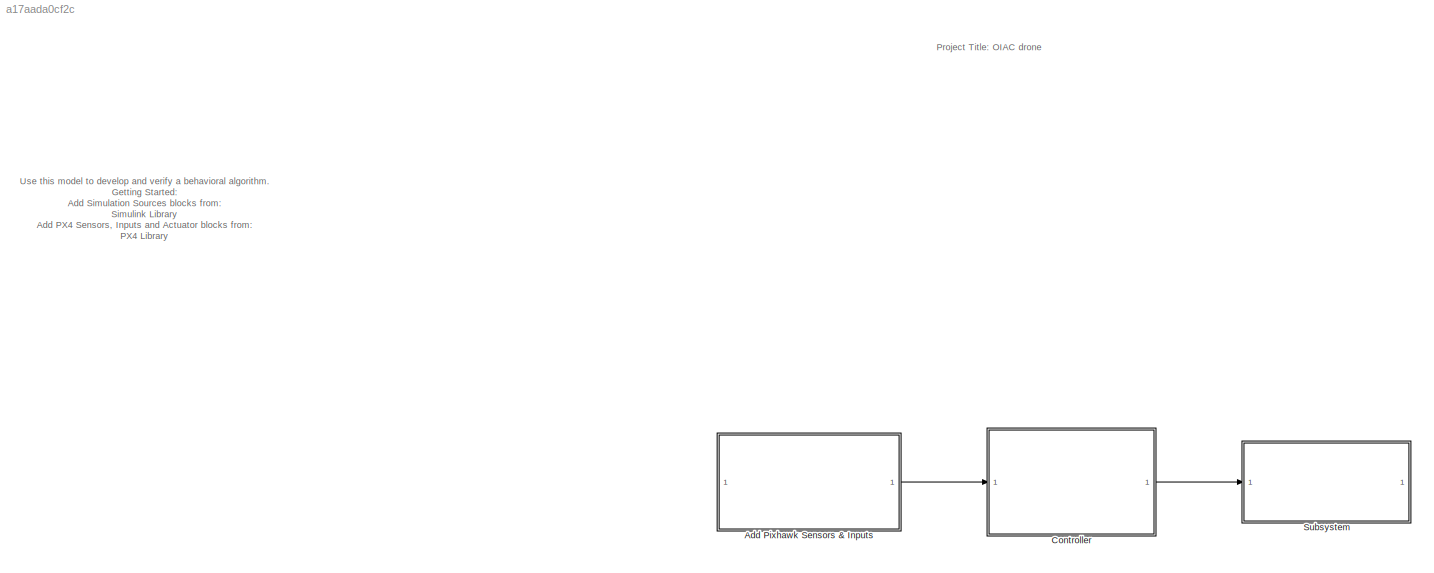
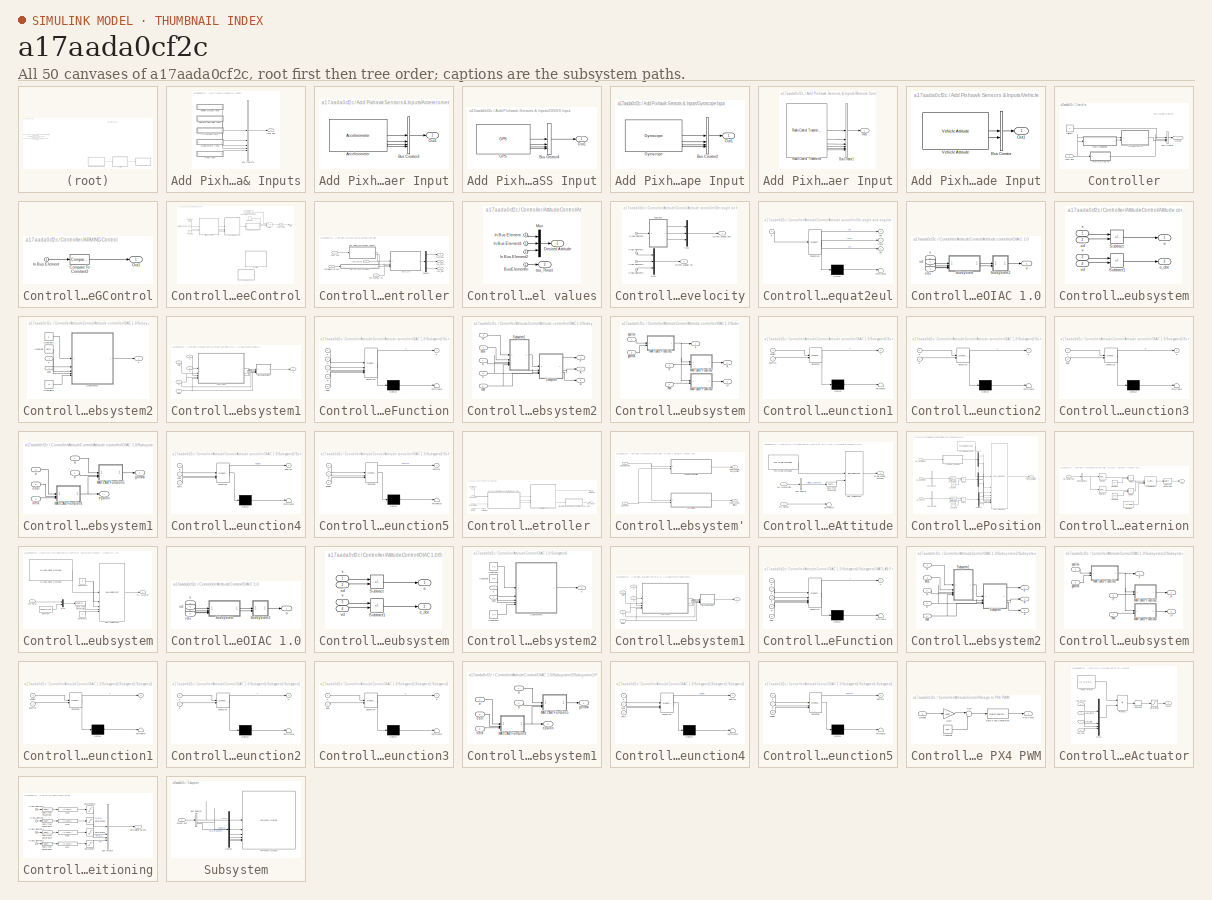
[diagram: thumbnail index - all 50 canvases of the model, root first then tree order]
MODEL slx_a17aada0cf2c
KIND model
CONFIG AbsTol = auto
CONFIG EnableMultiTasking = on
CONFIG FixedStep = auto
CONFIG MaxStep = auto
CONFIG MinStep = auto
CONFIG RelTol = 1e-3
CONFIG SampleTimeConstraint = Unconstrained
CONFIG SolverName = FixedStepAuto
CONFIG StartTime = 0.0
CONFIG StopTime = inf
BLOCK [SubSystem] Add Pixhawk Sensors & Inputs
BLOCK [SubSystem] Add Pixhawk Sensors & Inputs/Accelerometer Input
  NameLocation = left
BLOCK [Reference] Add Pixhawk Sensors & Inputs/Accelerometer Input/Accelerometer  REF=px4Sensorslib/Accelerometer
  SourceBlock = px4Sensorslib/Accelerometer
  SourceType = PX4 Accelerometer
BLOCK [BusCreator] Add Pixhawk Sensors & Inputs/Accelerometer Input/Bus Creator3
  DisplayOption = bar
  InheritFromInputs = off
  Inputs = 4
  OutDataTypeStr = Bus: AccelerometerBusObject
BLOCK [Outport] Add Pixhawk Sensors & Inputs/Accelerometer Input/Out1
BLOCK [BusCreator] Add Pixhawk Sensors & Inputs/Bus Creator5
  DisplayOption = bar
  InheritFromInputs = off
  Inputs = 5
  OutDataTypeStr = Bus: InputBusObject
BLOCK [SubSystem] Add Pixhawk Sensors & Inputs/GNSS Input
  NameLocation = left
BLOCK [BusCreator] Add Pixhawk Sensors & Inputs/GNSS Input/Bus Creator4
  DisplayOption = bar
  InheritFromInputs = off
  Inputs = 4
  OutDataTypeStr = Bus: GPSBusObject
BLOCK [Reference] Add Pixhawk Sensors & Inputs/GNSS Input/GPS  REF=px4Sensorslib/GPS
  SourceBlock = px4Sensorslib/GPS
  SourceType = PX4 GPS
BLOCK [Outport] Add Pixhawk Sensors & Inputs/GNSS Input/Out1
BLOCK [SubSystem] Add Pixhawk Sensors & Inputs/Gyroscope Input
  NameLocation = left
BLOCK [BusCreator] Add Pixhawk Sensors & Inputs/Gyroscope Input/Bus Creator2
  DisplayOption = bar
  InheritFromInputs = off
  Inputs = 4
  OutDataTypeStr = Bus: GyroBusObject
BLOCK [Reference] Add Pixhawk Sensors & Inputs/Gyroscope Input/Gyroscope  REF=px4Sensorslib/Gyroscope
  SourceBlock = px4Sensorslib/Gyroscope
  SourceType = PX4 Gyroscope
BLOCK [Outport] Add Pixhawk Sensors & Inputs/Gyroscope Input/Out1
BLOCK [Outport] Add Pixhawk Sensors & Inputs/Input Bus
  NameLocation = right
BLOCK [SubSystem] Add Pixhawk Sensors & Inputs/Remote Controller Input
  NameLocation = left
BLOCK [BusCreator] Add Pixhawk Sensors & Inputs/Remote Controller Input/Bus Creator1
  DisplayOption = bar
  InheritFromInputs = off
  Inputs = 6
  OutDataTypeStr = Bus: RCBusObject
BLOCK [Outport] Add Pixhawk Sensors & Inputs/Remote Controller Input/Out1
BLOCK [Reference] Add Pixhawk Sensors & Inputs/Remote Controller Input/Radio Control Transmitter  REF=px4Sensorslib/Radio Control Transmitter
  SourceBlock = px4Sensorslib/Radio Control Transmitter
  SourceType = PX4 Radio Control Transmitter
BLOCK [SubSystem] Add Pixhawk Sensors & Inputs/Vehicle Attitude Input
  NameLocation = left
BLOCK [BusCreator] Add Pixhawk Sensors & Inputs/Vehicle Attitude Input/Bus Creator
  DisplayOption = bar
  InheritFromInputs = off
  Inputs = 2
  OutDataTypeStr = Bus: AttitudeBusObject
BLOCK [Outport] Add Pixhawk Sensors & Inputs/Vehicle Attitude Input/Out1
BLOCK [Reference] Add Pixhawk Sensors & Inputs/Vehicle Attitude Input/Vehicle Attitude  REF=px4Sensorslib/Vehicle Attitude
  SourceBlock = px4Sensorslib/Vehicle Attitude
  SourceType = PX4 Vehicle Attitude
BLOCK [SubSystem] Controller
BLOCK [SubSystem] Controller/ARMINGControl
BLOCK [Reference] Controller/ARMINGControl/Compare To Constant3  REF=simulink/Logic and Bit
Operations/Compare
To Constant
  SourceBlock = simulink/Logic and Bit\nOperations/Compare\nTo Constant
  SourceType = Compare To Constant
BLOCK [Inport] Controller/ARMINGControl/In Bus Element
BLOCK [Outport] Controller/ARMINGControl/Out1
  VectorParamsAs1DForOutWhenUnconnected = off
BLOCK [SubSystem] Controller/AttitudeControl
BLOCK [SubSystem] Controller/AttitudeControl/Attitude controller
BLOCK [Demux] Controller/AttitudeControl/Attitude controller/Demux1
  Outputs = 3
BLOCK [SubSystem] Controller/AttitudeControl/Attitude controller/Get RC control values
  PortSchema = {"entries":[{"content":{"sides":[{"content":{"connectorIds":["In1"]},"type":"ConnectorPlacement.EquallySpacedRectSide","uuid":"d4f2e642-f139-4afb-8b32-1aebe4549dbe"},{"content":{"connectorIds":["Out1"],"side":"RIGHT"},"type":"ConnectorPlacement.EquallySpacedRectSide","uuid":"0ee46758-dfc7-4a62-8fbd-59cb0eb01f75"},{"content":{"connectorIds":["Out2"],"side":"TOP"},"type":"ConnectorPlacement.EquallyS...<+372ch>
BLOCK [Inport] Controller/AttitudeControl/Attitude controller/Get RC control values/BusElementIn
BLOCK [Outport] Controller/AttitudeControl/Attitude controller/Get RC control values/Desired Attitude
  NameLocation = right
BLOCK [Inport] Controller/AttitudeControl/Attitude controller/Get RC control values/In Bus Element
BLOCK [Inport] Controller/AttitudeControl/Attitude controller/Get RC control values/In Bus Element1
BLOCK [Inport] Controller/AttitudeControl/Attitude controller/Get RC control values/In Bus Element2
BLOCK [Mux] Controller/AttitudeControl/Attitude controller/Get RC control values/Mux
  DisplayOption = bar
  Inputs = 3
BLOCK [Outport] Controller/AttitudeControl/Attitude controller/Get RC control values/tau_Thrust
  NameLocation = right
  Port = 2
BLOCK [SubSystem] Controller/AttitudeControl/Attitude controller/Get angle and angular velocity
  NameLocation = top
BLOCK [Inport] Controller/AttitudeControl/Attitude controller/Get angle and angular velocity/In Bus Element
BLOCK [Inport] Controller/AttitudeControl/Attitude controller/Get angle and angular velocity/In Bus Element1
BLOCK [Inport] Controller/AttitudeControl/Attitude controller/Get angle and angular velocity/In Bus Element2
BLOCK [Inport] Controller/AttitudeControl/Attitude controller/Get angle and angular velocity/In Bus Element3
BLOCK [Mux] Controller/AttitudeControl/Attitude controller/Get angle and angular velocity/Mux
  DisplayOption = bar
  Inputs = 3
BLOCK [Mux] Controller/AttitudeControl/Attitude controller/Get angle and angular velocity/Mux1
  DisplayOption = bar
  Inputs = 3
BLOCK [Outport] Controller/AttitudeControl/Attitude controller/Get angle and angular velocity/current angular pos
  NameLocation = right
BLOCK [Outport] Controller/AttitudeControl/Attitude controller/Get angle and angular velocity/current angular vel
  NameLocation = right
  Port = 2
BLOCK [SubSystem] Controller/AttitudeControl/Attitude controller/Get angle and angular velocity/quat2eul
  ErrorFcn = Stateflow.Translate.translate
  NameLocation = top
  PermitHierarchicalResolution = ExplicitOnly
  SFBlockType = MATLAB Function
  TreatAsAtomicUnit = on
BLOCK [Demux] Controller/AttitudeControl/Attitude controller/Get angle and angular velocity/quat2eul/ Demux 
  Outputs = 1
BLOCK [S-Function] Controller/AttitudeControl/Attitude controller/Get angle and angular velocity/quat2eul/ SFunction 
  EnableBusSupport = on
  FunctionName = sf_sfun
  PortCounts = [1 4]
  SFcnIsStateOwnerBlock = off
  SFunctionDeploymentMode = off
  Tag = Stateflow S-Function 10
BLOCK [Terminator] Controller/AttitudeControl/Attitude controller/Get angle and angular velocity/quat2eul/ Terminator 
BLOCK [Outport] Controller/AttitudeControl/Attitude controller/Get angle and angular velocity/quat2eul/phi
  VectorParamsAs1DForOutWhenUnconnected = off
BLOCK [Outport] Controller/AttitudeControl/Attitude controller/Get angle and angular velocity/quat2eul/psi
  Port = 3
  VectorParamsAs1DForOutWhenUnconnected = off
BLOCK [Inport] Controller/AttitudeControl/Attitude controller/Get angle and angular velocity/quat2eul/q
BLOCK [Outport] Controller/AttitudeControl/Attitude controller/Get angle and angular velocity/quat2eul/theta
  Port = 2
  VectorParamsAs1DForOutWhenUnconnected = off
BLOCK [Inport] Controller/AttitudeControl/Attitude controller/Input bus
  NameLocation = left
BLOCK [Inport] Controller/AttitudeControl/Attitude controller/Normalized RC bus
  NameLocation = left
  Port = 2
BLOCK [SubSystem] Controller/AttitudeControl/Attitude controller/OIAC 1.0
BLOCK [SubSystem] Controller/AttitudeControl/Attitude controller/OIAC 1.0/Subsystem
BLOCK [Sum] Controller/AttitudeControl/Attitude controller/OIAC 1.0/Subsystem/Subtract
  IconShape = rectangular
  Inputs = +-
BLOCK [Sum] Controller/AttitudeControl/Attitude controller/OIAC 1.0/Subsystem/Subtract1
  IconShape = rectangular
  Inputs = +-
BLOCK [Outport] Controller/AttitudeControl/Attitude controller/OIAC 1.0/Subsystem/e
  NameLocation = right
BLOCK [Outport] Controller/AttitudeControl/Attitude controller/OIAC 1.0/Subsystem/e_dot
  NameLocation = right
  Port = 2
BLOCK [Inport] Controller/AttitudeControl/Attitude controller/OIAC 1.0/Subsystem/v
  NameLocation = left
  Port = 3
BLOCK [Inport] Controller/AttitudeControl/Attitude controller/OIAC 1.0/Subsystem/vd
  NameLocation = left
  Port = 4
BLOCK [Inport] Controller/AttitudeControl/Attitude controller/OIAC 1.0/Subsystem/x
  NameLocation = left
BLOCK [Inport] Controller/AttitudeControl/Attitude controller/OIAC 1.0/Subsystem/xd
  NameLocation = left
  Port = 2
BLOCK [SubSystem] Controller/AttitudeControl/Attitude controller/OIAC 1.0/Subsystem2
BLOCK [Constant] Controller/AttitudeControl/Attitude controller/OIAC 1.0/Subsystem2/Constant
  Value = Beta
BLOCK [Constant] Controller/AttitudeControl/Attitude controller/OIAC 1.0/Subsystem2/Constant1
  Value = a
BLOCK [Constant] Controller/AttitudeControl/Attitude controller/OIAC 1.0/Subsystem2/Constant2
  Value = b
BLOCK [SubSystem] Controller/AttitudeControl/Attitude controller/OIAC 1.0/Subsystem2/Subsystem1
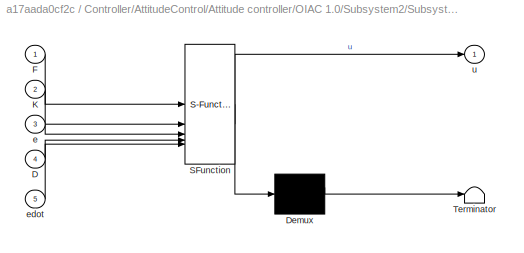
BLOCK [SubSystem] Controller/AttitudeControl/Attitude controller/OIAC 1.0/Subsystem2/Subsystem1/MATLAB Function
  ErrorFcn = Stateflow.Translate.translate
  LibrarySourceBlock = simulink/User-Defined\nFunctions/MATLAB Function
  PermitHierarchicalResolution = ExplicitOnly
  SFBlockType = MATLAB Function
  TreatAsAtomicUnit = on
BLOCK [Demux] Controller/AttitudeControl/Attitude controller/OIAC 1.0/Subsystem2/Subsystem1/MATLAB Function/ Demux 
  Outputs = 1
BLOCK [S-Function] Controller/AttitudeControl/Attitude controller/OIAC 1.0/Subsystem2/Subsystem1/MATLAB Function/ SFunction 
  EnableBusSupport = on
  FunctionName = sf_sfun
  PortCounts = [5 2]
  SFcnIsStateOwnerBlock = off
  SFunctionDeploymentMode = off
  Tag = Stateflow S-Function 7
BLOCK [Terminator] Controller/AttitudeControl/Attitude controller/OIAC 1.0/Subsystem2/Subsystem1/MATLAB Function/ Terminator 
BLOCK [Inport] Controller/AttitudeControl/Attitude controller/OIAC 1.0/Subsystem2/Subsystem1/MATLAB Function/D
  Port = 4
BLOCK [Inport] Controller/AttitudeControl/Attitude controller/OIAC 1.0/Subsystem2/Subsystem1/MATLAB Function/F
BLOCK [Inport] Controller/AttitudeControl/Attitude controller/OIAC 1.0/Subsystem2/Subsystem1/MATLAB Function/K
  Port = 2
BLOCK [Inport] Controller/AttitudeControl/Attitude controller/OIAC 1.0/Subsystem2/Subsystem1/MATLAB Function/e
  Port = 3
BLOCK [Inport] Controller/AttitudeControl/Attitude controller/OIAC 1.0/Subsystem2/Subsystem1/MATLAB Function/edot
  Port = 5
BLOCK [Outport] Controller/AttitudeControl/Attitude controller/OIAC 1.0/Subsystem2/Subsystem1/MATLAB Function/u
BLOCK [SubSystem] Controller/AttitudeControl/Attitude controller/OIAC 1.0/Subsystem2/Subsystem1/Subsystem2
BLOCK [Outport] Controller/AttitudeControl/Attitude controller/OIAC 1.0/Subsystem2/Subsystem1/Subsystem2/D
  NameLocation = right
  Port = 3
BLOCK [Outport] Controller/AttitudeControl/Attitude controller/OIAC 1.0/Subsystem2/Subsystem1/Subsystem2/F
  NameLocation = right
BLOCK [Outport] Controller/AttitudeControl/Attitude controller/OIAC 1.0/Subsystem2/Subsystem1/Subsystem2/K
  NameLocation = right
  Port = 2
BLOCK [SubSystem] Controller/AttitudeControl/Attitude controller/OIAC 1.0/Subsystem2/Subsystem1/Subsystem2/Subsystem
BLOCK [Outport] Controller/AttitudeControl/Attitude controller/OIAC 1.0/Subsystem2/Subsystem1/Subsystem2/Subsystem/D
  Port = 3
BLOCK [Outport] Controller/AttitudeControl/Attitude controller/OIAC 1.0/Subsystem2/Subsystem1/Subsystem2/Subsystem/F
BLOCK [Outport] Controller/AttitudeControl/Attitude controller/OIAC 1.0/Subsystem2/Subsystem1/Subsystem2/Subsystem/K
  Port = 2
BLOCK [SubSystem] Controller/AttitudeControl/Attitude controller/OIAC 1.0/Subsystem2/Subsystem1/Subsystem2/Subsystem/MATLAB Function1
  ErrorFcn = Stateflow.Translate.translate
  LibrarySourceBlock = simulink/User-Defined\nFunctions/MATLAB Function
  PermitHierarchicalResolution = ExplicitOnly
  SFBlockType = MATLAB Function
  TreatAsAtomicUnit = on
BLOCK [Demux] Controller/AttitudeControl/Attitude controller/OIAC 1.0/Subsystem2/Subsystem1/Subsystem2/Subsystem/MATLAB Function1/ Demux 
  Outputs = 1
BLOCK [S-Function] Controller/AttitudeControl/Attitude controller/OIAC 1.0/Subsystem2/Subsystem1/Subsystem2/Subsystem/MATLAB Function1/ SFunction 
  EnableBusSupport = on
  FunctionName = sf_sfun
  PortCounts = [2 2]
  SFcnIsStateOwnerBlock = off
  SFunctionDeploymentMode = off
  Tag = Stateflow S-Function 8
BLOCK [Terminator] Controller/AttitudeControl/Attitude controller/OIAC 1.0/Subsystem2/Subsystem1/Subsystem2/Subsystem/MATLAB Function1/ Terminator 
BLOCK [Outport] Controller/AttitudeControl/Attitude controller/OIAC 1.0/Subsystem2/Subsystem1/Subsystem2/Subsystem/MATLAB Function1/F
BLOCK [Inport] Controller/AttitudeControl/Attitude controller/OIAC 1.0/Subsystem2/Subsystem1/Subsystem2/Subsystem/MATLAB Function1/epsilon
BLOCK [Inport] Controller/AttitudeControl/Attitude controller/OIAC 1.0/Subsystem2/Subsystem1/Subsystem2/Subsystem/MATLAB Function1/gamma
  Port = 2
BLOCK [SubSystem] Controller/AttitudeControl/Attitude controller/OIAC 1.0/Subsystem2/Subsystem1/Subsystem2/Subsystem/MATLAB Function2
  ErrorFcn = Stateflow.Translate.translate
  LibrarySourceBlock = simulink/User-Defined\nFunctions/MATLAB Function
  PermitHierarchicalResolution = ExplicitOnly
  SFBlockType = MATLAB Function
  TreatAsAtomicUnit = on
BLOCK [Demux] Controller/AttitudeControl/Attitude controller/OIAC 1.0/Subsystem2/Subsystem1/Subsystem2/Subsystem/MATLAB Function2/ Demux 
  Outputs = 1
BLOCK [S-Function] Controller/AttitudeControl/Attitude controller/OIAC 1.0/Subsystem2/Subsystem1/Subsystem2/Subsystem/MATLAB Function2/ SFunction 
  EnableBusSupport = on
  FunctionName = sf_sfun
  PortCounts = [2 2]
  SFcnIsStateOwnerBlock = off
  SFunctionDeploymentMode = off
  Tag = Stateflow S-Function 9
BLOCK [Terminator] Controller/AttitudeControl/Attitude controller/OIAC 1.0/Subsystem2/Subsystem1/Subsystem2/Subsystem/MATLAB Function2/ Terminator 
BLOCK [Inport] Controller/AttitudeControl/Attitude controller/OIAC 1.0/Subsystem2/Subsystem1/Subsystem2/Subsystem/MATLAB Function2/F
BLOCK [Outport] Controller/AttitudeControl/Attitude controller/OIAC 1.0/Subsystem2/Subsystem1/Subsystem2/Subsystem/MATLAB Function2/K
BLOCK [Inport] Controller/AttitudeControl/Attitude controller/OIAC 1.0/Subsystem2/Subsystem1/Subsystem2/Subsystem/MATLAB Function2/e
  Port = 2
BLOCK [SubSystem] Controller/AttitudeControl/Attitude controller/OIAC 1.0/Subsystem2/Subsystem1/Subsystem2/Subsystem/MATLAB Function3
  ErrorFcn = Stateflow.Translate.translate
  LibrarySourceBlock = simulink/User-Defined\nFunctions/MATLAB Function
  PermitHierarchicalResolution = ExplicitOnly
  SFBlockType = MATLAB Function
  TreatAsAtomicUnit = on
BLOCK [Demux] Controller/AttitudeControl/Attitude controller/OIAC 1.0/Subsystem2/Subsystem1/Subsystem2/Subsystem/MATLAB Function3/ Demux 
  Outputs = 1
BLOCK [S-Function] Controller/AttitudeControl/Attitude controller/OIAC 1.0/Subsystem2/Subsystem1/Subsystem2/Subsystem/MATLAB Function3/ SFunction 
  EnableBusSupport = on
  FunctionName = sf_sfun
  PortCounts = [2 2]
  SFcnIsStateOwnerBlock = off
  SFunctionDeploymentMode = off
  Tag = Stateflow S-Function 11
BLOCK [Terminator] Controller/AttitudeControl/Attitude controller/OIAC 1.0/Subsystem2/Subsystem1/Subsystem2/Subsystem/MATLAB Function3/ Terminator 
BLOCK [Outport] Controller/AttitudeControl/Attitude controller/OIAC 1.0/Subsystem2/Subsystem1/Subsystem2/Subsystem/MATLAB Function3/D
BLOCK [Inport] Controller/AttitudeControl/Attitude controller/OIAC 1.0/Subsystem2/Subsystem1/Subsystem2/Subsystem/MATLAB Function3/F
BLOCK [Inport] Controller/AttitudeControl/Attitude controller/OIAC 1.0/Subsystem2/Subsystem1/Subsystem2/Subsystem/MATLAB Function3/edot
  Port = 2
BLOCK [Inport] Controller/AttitudeControl/Attitude controller/OIAC 1.0/Subsystem2/Subsystem1/Subsystem2/Subsystem/e
  Port = 3
BLOCK [Inport] Controller/AttitudeControl/Attitude controller/OIAC 1.0/Subsystem2/Subsystem1/Subsystem2/Subsystem/edot
  Port = 4
BLOCK [Inport] Controller/AttitudeControl/Attitude controller/OIAC 1.0/Subsystem2/Subsystem1/Subsystem2/Subsystem/epsilon
BLOCK [Inport] Controller/AttitudeControl/Attitude controller/OIAC 1.0/Subsystem2/Subsystem1/Subsystem2/Subsystem/gamma
  Port = 2
BLOCK [SubSystem] Controller/AttitudeControl/Attitude controller/OIAC 1.0/Subsystem2/Subsystem1/Subsystem2/Subsystem1
BLOCK [SubSystem] Controller/AttitudeControl/Attitude controller/OIAC 1.0/Subsystem2/Subsystem1/Subsystem2/Subsystem1/MATLAB Function4
  ErrorFcn = Stateflow.Translate.translate
  LibrarySourceBlock = simulink/User-Defined\nFunctions/MATLAB Function
  PermitHierarchicalResolution = ExplicitOnly
  SFBlockType = MATLAB Function
  TreatAsAtomicUnit = on
BLOCK [Demux] Controller/AttitudeControl/Attitude controller/OIAC 1.0/Subsystem2/Subsystem1/Subsystem2/Subsystem1/MATLAB Function4/ Demux 
  Outputs = 1
BLOCK [S-Function] Controller/AttitudeControl/Attitude controller/OIAC 1.0/Subsystem2/Subsystem1/Subsystem2/Subsystem1/MATLAB Function4/ SFunction 
  EnableBusSupport = on
  FunctionName = sf_sfun
  PortCounts = [3 2]
  SFcnIsStateOwnerBlock = off
  SFunctionDeploymentMode = off
  Tag = Stateflow S-Function 12
BLOCK [Terminator] Controller/AttitudeControl/Attitude controller/OIAC 1.0/Subsystem2/Subsystem1/Subsystem2/Subsystem1/MATLAB Function4/ Terminator 
BLOCK [Inport] Controller/AttitudeControl/Attitude controller/OIAC 1.0/Subsystem2/Subsystem1/Subsystem2/Subsystem1/MATLAB Function4/beta
  Port = 3
BLOCK [Inport] Controller/AttitudeControl/Attitude controller/OIAC 1.0/Subsystem2/Subsystem1/Subsystem2/Subsystem1/MATLAB Function4/e
BLOCK [Inport] Controller/AttitudeControl/Attitude controller/OIAC 1.0/Subsystem2/Subsystem1/Subsystem2/Subsystem1/MATLAB Function4/edot
  Port = 2
BLOCK [Outport] Controller/AttitudeControl/Attitude controller/OIAC 1.0/Subsystem2/Subsystem1/Subsystem2/Subsystem1/MATLAB Function4/epsilon
BLOCK [SubSystem] Controller/AttitudeControl/Attitude controller/OIAC 1.0/Subsystem2/Subsystem1/Subsystem2/Subsystem1/MATLAB Function5
  ErrorFcn = Stateflow.Translate.translate
  LibrarySourceBlock = simulink/User-Defined\nFunctions/MATLAB Function
  PermitHierarchicalResolution = ExplicitOnly
  SFBlockType = MATLAB Function
  TreatAsAtomicUnit = on
BLOCK [Demux] Controller/AttitudeControl/Attitude controller/OIAC 1.0/Subsystem2/Subsystem1/Subsystem2/Subsystem1/MATLAB Function5/ Demux 
  Outputs = 1
BLOCK [S-Function] Controller/AttitudeControl/Attitude controller/OIAC 1.0/Subsystem2/Subsystem1/Subsystem2/Subsystem1/MATLAB Function5/ SFunction 
  EnableBusSupport = on
  FunctionName = sf_sfun
  PortCounts = [3 2]
  SFcnIsStateOwnerBlock = off
  SFunctionDeploymentMode = off
  Tag = Stateflow S-Function 18
BLOCK [Terminator] Controller/AttitudeControl/Attitude controller/OIAC 1.0/Subsystem2/Subsystem1/Subsystem2/Subsystem1/MATLAB Function5/ Terminator 
BLOCK [Inport] Controller/AttitudeControl/Attitude controller/OIAC 1.0/Subsystem2/Subsystem1/Subsystem2/Subsystem1/MATLAB Function5/a
BLOCK [Inport] Controller/AttitudeControl/Attitude controller/OIAC 1.0/Subsystem2/Subsystem1/Subsystem2/Subsystem1/MATLAB Function5/b
  Port = 2
BLOCK [Inport] Controller/AttitudeControl/Attitude controller/OIAC 1.0/Subsystem2/Subsystem1/Subsystem2/Subsystem1/MATLAB Function5/epsilon
  Port = 3
BLOCK [Outport] Controller/AttitudeControl/Attitude controller/OIAC 1.0/Subsystem2/Subsystem1/Subsystem2/Subsystem1/MATLAB Function5/gamma
BLOCK [Inport] Controller/AttitudeControl/Attitude controller/OIAC 1.0/Subsystem2/Subsystem1/Subsystem2/Subsystem1/a
BLOCK [Inport] Controller/AttitudeControl/Attitude controller/OIAC 1.0/Subsystem2/Subsystem1/Subsystem2/Subsystem1/b
  Port = 4
BLOCK [Inport] Controller/AttitudeControl/Attitude controller/OIAC 1.0/Subsystem2/Subsystem1/Subsystem2/Subsystem1/beta
  Port = 2
BLOCK [Inport] Controller/AttitudeControl/Attitude controller/OIAC 1.0/Subsystem2/Subsystem1/Subsystem2/Subsystem1/e
  Port = 3
BLOCK [Inport] Controller/AttitudeControl/Attitude controller/OIAC 1.0/Subsystem2/Subsystem1/Subsystem2/Subsystem1/edot
  Port = 5
BLOCK [Outport] Controller/AttitudeControl/Attitude controller/OIAC 1.0/Subsystem2/Subsystem1/Subsystem2/Subsystem1/epsilon
BLOCK [Outport] Controller/AttitudeControl/Attitude controller/OIAC 1.0/Subsystem2/Subsystem1/Subsystem2/Subsystem1/gamma
  Port = 2
BLOCK [Inport] Controller/AttitudeControl/Attitude controller/OIAC 1.0/Subsystem2/Subsystem1/Subsystem2/a
BLOCK [Inport] Controller/AttitudeControl/Attitude controller/OIAC 1.0/Subsystem2/Subsystem1/Subsystem2/b
  Port = 3
BLOCK [Inport] Controller/AttitudeControl/Attitude controller/OIAC 1.0/Subsystem2/Subsystem1/Subsystem2/beta
  Port = 2
BLOCK [Inport] Controller/AttitudeControl/Attitude controller/OIAC 1.0/Subsystem2/Subsystem1/Subsystem2/e
  Port = 4
BLOCK [Inport] Controller/AttitudeControl/Attitude controller/OIAC 1.0/Subsystem2/Subsystem1/Subsystem2/edot
  Port = 5
BLOCK [Inport] Controller/AttitudeControl/Attitude controller/OIAC 1.0/Subsystem2/Subsystem1/a
BLOCK [Inport] Controller/AttitudeControl/Attitude controller/OIAC 1.0/Subsystem2/Subsystem1/b
  Port = 5
BLOCK [Inport] Controller/AttitudeControl/Attitude controller/OIAC 1.0/Subsystem2/Subsystem1/beta
  Port = 2
BLOCK [Inport] Controller/AttitudeControl/Attitude controller/OIAC 1.0/Subsystem2/Subsystem1/e
  Port = 3
BLOCK [Inport] Controller/AttitudeControl/Attitude controller/OIAC 1.0/Subsystem2/Subsystem1/edot
  Port = 4
BLOCK [Outport] Controller/AttitudeControl/Attitude controller/OIAC 1.0/Subsystem2/Subsystem1/u
BLOCK [Inport] Controller/AttitudeControl/Attitude controller/OIAC 1.0/Subsystem2/e
BLOCK [Inport] Controller/AttitudeControl/Attitude controller/OIAC 1.0/Subsystem2/edot
  Port = 2
BLOCK [Outport] Controller/AttitudeControl/Attitude controller/OIAC 1.0/Subsystem2/u
BLOCK [Outport] Controller/AttitudeControl/Attitude controller/OIAC 1.0/u
BLOCK [Inport] Controller/AttitudeControl/Attitude controller/OIAC 1.0/v
  NameLocation = left
  Port = 2
BLOCK [Inport] Controller/AttitudeControl/Attitude controller/OIAC 1.0/vd
  NameLocation = left
  Port = 4
BLOCK [Inport] Controller/AttitudeControl/Attitude controller/OIAC 1.0/x
  NameLocation = left
BLOCK [Inport] Controller/AttitudeControl/Attitude controller/OIAC 1.0/xd
  NameLocation = left
  Port = 3
BLOCK [Inport] Controller/AttitudeControl/Attitude controller/des angular vel
  Port = 3
BLOCK [Outport] Controller/AttitudeControl/Attitude controller/tau_Pitch
  NameLocation = right
  Port = 3
BLOCK [Outport] Controller/AttitudeControl/Attitude controller/tau_Roll
  NameLocation = right
  Port = 4
BLOCK [Outport] Controller/AttitudeControl/Attitude controller/tau_Thrust
  NameLocation = right
BLOCK [Outport] Controller/AttitudeControl/Attitude controller/tau_Yaw
  NameLocation = right
  Port = 2
BLOCK [Constant] Controller/AttitudeControl/Constant
  Value = 0
BLOCK [Constant] Controller/AttitudeControl/Constant1
  Value = 0
BLOCK [SubSystem] Controller/AttitudeControl/Controller 
  Commented = on
BLOCK [SubSystem] Controller/AttitudeControl/Controller /'MAVLink + Simulator module' + 'Estimator Subsystem'
  PortSchema = {"entries":[{"content":{"sides":[{"content":{"connectorIds":[]},"type":"ConnectorPlacement.EquallySpacedRectSide","uuid":"18f19b7f-7de0-4ac4-a24f-d8ceb747f924"},{"content":{"connectorIds":[],"side":"RIGHT"},"type":"ConnectorPlacement.EquallySpacedRectSide","uuid":"b474fbae-f8e2-4c2b-be96-a63ee47992dd"},{"content":{"connectorIds":["In1","In2"],"side":"TOP"},"type":"ConnectorPlacement.EquallySpacedR...<+541ch>
BLOCK [Inport] Controller/AttitudeControl/Controller /'MAVLink + Simulator module' + 'Estimator Subsystem'/HIL Quaternion
BLOCK [Inport] Controller/AttitudeControl/Controller /'MAVLink + Simulator module' + 'Estimator Subsystem'/HIL Sensor
  Port = 2
BLOCK [SubSystem] Controller/AttitudeControl/Controller /'MAVLink + Simulator module' + 'Estimator Subsystem'/Vehicle Attitude
BLOCK [BusAssignment] Controller/AttitudeControl/Controller /'MAVLink + Simulator module' + 'Estimator Subsystem'/Vehicle Attitude/Bus Assignment
  AssignedSignals = q
BLOCK [BusSelector] Controller/AttitudeControl/Controller /'MAVLink + Simulator module' + 'Estimator Subsystem'/Vehicle Attitude/Bus Selector
  OutputSignals = Payload.attitude_quaternion
BLOCK [DataTypeConversion] Controller/AttitudeControl/Controller /'MAVLink + Simulator module' + 'Estimator Subsystem'/Vehicle Attitude/Data Type Conversion
  RndMeth = Floor
  SaturateOnIntegerOverflow = off
BLOCK [Inport] Controller/AttitudeControl/Controller /'MAVLink + Simulator module' + 'Estimator Subsystem'/Vehicle Attitude/HIL Quaternion
BLOCK [Inport] Controller/AttitudeControl/Controller /'MAVLink + Simulator module' + 'Estimator Subsystem'/Vehicle Attitude/HIL Sensor
  Port = 2
BLOCK [Reference] Controller/AttitudeControl/Controller /'MAVLink + Simulator module' + 'Estimator Subsystem'/Vehicle Attitude/PX4 uORB Message  REF=px4uORBlib/PX4 uORB Message
  SourceBlock = px4uORBlib/PX4 uORB Message
  SourceType = PX4 uORB Message
BLOCK [Terminator] Controller/AttitudeControl/Controller /'MAVLink + Simulator module' + 'Estimator Subsystem'/Vehicle Attitude/Terminator
BLOCK [Outport] Controller/AttitudeControl/Controller /'MAVLink + Simulator module' + 'Estimator Subsystem'/Vehicle Attitude/uORB_vehicle_attitude
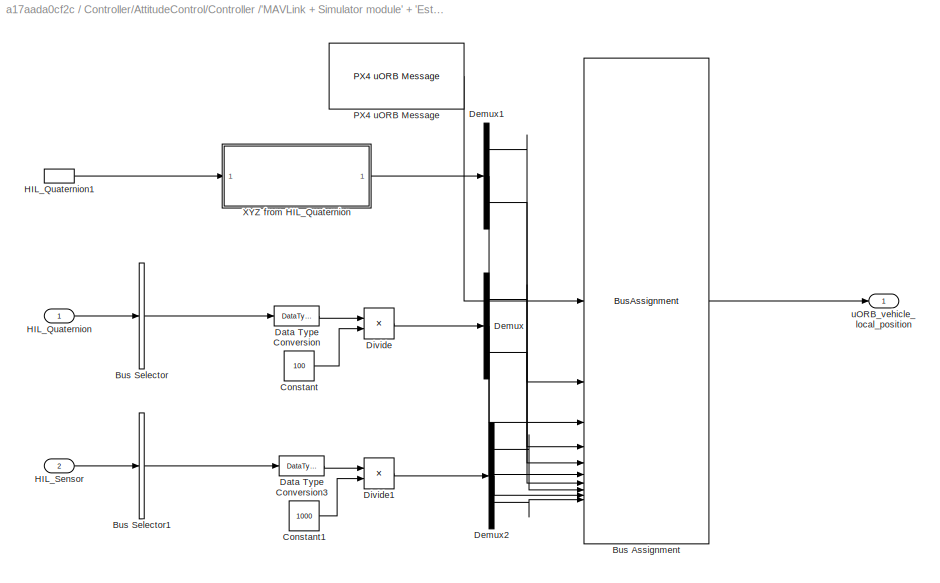
BLOCK [SubSystem] Controller/AttitudeControl/Controller /'MAVLink + Simulator module' + 'Estimator Subsystem'/Vehicle Local Position
BLOCK [BusAssignment] Controller/AttitudeControl/Controller /'MAVLink + Simulator module' + 'Estimator Subsystem'/Vehicle Local Position/Bus Assignment
  AssignedSignals = x,y,z,vx,vy,vz,ax,ay,az
BLOCK [BusSelector] Controller/AttitudeControl/Controller /'MAVLink + Simulator module' + 'Estimator Subsystem'/Vehicle Local Position/Bus Selector
  OutputAsBus = on
  OutputSignals = Payload.vx,Payload.vy,Payload.vz
BLOCK [BusSelector] Controller/AttitudeControl/Controller /'MAVLink + Simulator module' + 'Estimator Subsystem'/Vehicle Local Position/Bus Selector1
  OutputAsBus = on
  OutputSignals = Payload.xacc,Payload.yacc,Payload.zacc
BLOCK [Constant] Controller/AttitudeControl/Controller /'MAVLink + Simulator module' + 'Estimator Subsystem'/Vehicle Local Position/Constant
  OutDataTypeStr = single
  SampleTime = SampleTime
  Value = 100
BLOCK [Constant] Controller/AttitudeControl/Controller /'MAVLink + Simulator module' + 'Estimator Subsystem'/Vehicle Local Position/Constant1
  OutDataTypeStr = single
  SampleTime = SampleTime
  Value = 1000
BLOCK [DataTypeConversion] Controller/AttitudeControl/Controller /'MAVLink + Simulator module' + 'Estimator Subsystem'/Vehicle Local Position/Data Type Conversion
  OutDataTypeStr = single
  RndMeth = Floor
  SaturateOnIntegerOverflow = off
BLOCK [DataTypeConversion] Controller/AttitudeControl/Controller /'MAVLink + Simulator module' + 'Estimator Subsystem'/Vehicle Local Position/Data Type Conversion3
  OutDataTypeStr = single
  RndMeth = Floor
  SaturateOnIntegerOverflow = off
BLOCK [Demux] Controller/AttitudeControl/Controller /'MAVLink + Simulator module' + 'Estimator Subsystem'/Vehicle Local Position/Demux
  Outputs = 3
BLOCK [Demux] Controller/AttitudeControl/Controller /'MAVLink + Simulator module' + 'Estimator Subsystem'/Vehicle Local Position/Demux1
  Outputs = 3
BLOCK [Demux] Controller/AttitudeControl/Controller /'MAVLink + Simulator module' + 'Estimator Subsystem'/Vehicle Local Position/Demux2
  Outputs = 3
BLOCK [Product] Controller/AttitudeControl/Controller /'MAVLink + Simulator module' + 'Estimator Subsystem'/Vehicle Local Position/Divide
  Inputs = */
BLOCK [Product] Controller/AttitudeControl/Controller /'MAVLink + Simulator module' + 'Estimator Subsystem'/Vehicle Local Position/Divide1
  Inputs = */
BLOCK [Inport] Controller/AttitudeControl/Controller /'MAVLink + Simulator module' + 'Estimator Subsystem'/Vehicle Local Position/HIL_Quaternion
BLOCK [InportShadow] Controller/AttitudeControl/Controller /'MAVLink + Simulator module' + 'Estimator Subsystem'/Vehicle Local Position/HIL_Quaternion1
BLOCK [Inport] Controller/AttitudeControl/Controller /'MAVLink + Simulator module' + 'Estimator Subsystem'/Vehicle Local Position/HIL_Sensor
  Port = 2
BLOCK [Reference] Controller/AttitudeControl/Controller /'MAVLink + Simulator module' + 'Estimator Subsystem'/Vehicle Local Position/PX4 uORB Message  REF=px4uORBlib/PX4 uORB Message
  SourceBlock = px4uORBlib/PX4 uORB Message
  SourceType = PX4 uORB Message
BLOCK [SubSystem] Controller/AttitudeControl/Controller /'MAVLink + Simulator module' + 'Estimator Subsystem'/Vehicle Local Position/XYZ from HIL_Quaternion
BLOCK [BusSelector] Controller/AttitudeControl/Controller /'MAVLink + Simulator module' + 'Estimator Subsystem'/Vehicle Local Position/XYZ from HIL_Quaternion/Bus Selector3
  OutputAsBus = on
  OutputSignals = Payload.lat,Payload.lon,Payload.alt
BLOCK [Constant] Controller/AttitudeControl/Controller /'MAVLink + Simulator module' + 'Estimator Subsystem'/Vehicle Local Position/XYZ from HIL_Quaternion/Constant
  OutDataTypeStr = double
  Value = 1e7
BLOCK [Constant] Controller/AttitudeControl/Controller /'MAVLink + Simulator module' + 'Estimator Subsystem'/Vehicle Local Position/XYZ from HIL_Quaternion/Constant1
  OutDataTypeStr = double
  Value = -71.3232
BLOCK [Constant] Controller/AttitudeControl/Controller /'MAVLink + Simulator module' + 'Estimator Subsystem'/Vehicle Local Position/XYZ from HIL_Quaternion/Constant2
  OutDataTypeStr = double
  Value = 1000
BLOCK [DataTypeConversion] Controller/AttitudeControl/Controller /'MAVLink + Simulator module' + 'Estimator Subsystem'/Vehicle Local Position/XYZ from HIL_Quaternion/Data Type Conversion
  OutDataTypeStr = single
  RndMeth = Floor
  SaturateOnIntegerOverflow = off
BLOCK [Product] Controller/AttitudeControl/Controller /'MAVLink + Simulator module' + 'Estimator Subsystem'/Vehicle Local Position/XYZ from HIL_Quaternion/Divide
  Inputs = */
BLOCK [Product] Controller/AttitudeControl/Controller /'MAVLink + Simulator module' + 'Estimator Subsystem'/Vehicle Local Position/XYZ from HIL_Quaternion/Divide1
  Inputs = */
BLOCK [Inport] Controller/AttitudeControl/Controller /'MAVLink + Simulator module' + 'Estimator Subsystem'/Vehicle Local Position/XYZ from HIL_Quaternion/HIL_Quaternion
BLOCK [Reference] Controller/AttitudeControl/Controller /'MAVLink + Simulator module' + 'Estimator Subsystem'/Vehicle Local Position/XYZ from HIL_Quaternion/LLA to Flat Earth  REF=aerolibtransform2/LLA to Flat Earth
  SourceBlock = aerolibtransform2/LLA to Flat Earth
  SourceType = LLA to Flat Earth
BLOCK [Selector] Controller/AttitudeControl/Controller /'MAVLink + Simulator module' + 'Estimator Subsystem'/Vehicle Local Position/XYZ from HIL_Quaternion/Selector
  IndexOptions = Index vector (dialog)
  Indices = [1:2]
  InputPortWidth = 3
  OutputSizes = 1
BLOCK [Selector] Controller/AttitudeControl/Controller /'MAVLink + Simulator module' + 'Estimator Subsystem'/Vehicle Local Position/XYZ from HIL_Quaternion/Selector1
  IndexOptions = Index vector (dialog)
  Indices = [3]
  InputPortWidth = 3
  OutputSizes = 1
BLOCK [Outport] Controller/AttitudeControl/Controller /'MAVLink + Simulator module' + 'Estimator Subsystem'/Vehicle Local Position/XYZ from HIL_Quaternion/XYZ
BLOCK [Outport] Controller/AttitudeControl/Controller /'MAVLink + Simulator module' + 'Estimator Subsystem'/Vehicle Local Position/uORB_vehicle_local_position
BLOCK [Outport] Controller/AttitudeControl/Controller /'MAVLink + Simulator module' + 'Estimator Subsystem'/uORB_vehicle_attitude
BLOCK [Outport] Controller/AttitudeControl/Controller /'MAVLink + Simulator module' + 'Estimator Subsystem'/uORB_vehicle_local_position
  Port = 2
BLOCK [SubSystem] Controller/AttitudeControl/Controller /'Simulator module' - Create HIL Actuator Bus Subsystem
BLOCK [BusAssignment] Controller/AttitudeControl/Controller /'Simulator module' - Create HIL Actuator Bus Subsystem/Bus Assignment
  AssignedSignals = Payload.time_usec,Payload.flags,Payload.controls,Payload.mode
BLOCK [Constant] Controller/AttitudeControl/Controller /'Simulator module' - Create HIL Actuator Bus Subsystem/Constant
  OutDataTypeStr = Inherit: Inherit via back propagation
  SampleTime = SampleTime
  Value = zeros(1,12)
BLOCK [Constant] Controller/AttitudeControl/Controller /'Simulator module' - Create HIL Actuator Bus Subsystem/Constant1
  OutDataTypeStr = Inherit: Inherit via back propagation
  SampleTime = SampleTime
  Value = 0
BLOCK [Constant] Controller/AttitudeControl/Controller /'Simulator module' - Create HIL Actuator Bus Subsystem/Constant2
  OutDataTypeStr = Inherit: Inherit via back propagation
  SampleTime = SampleTime
  Value = 0
BLOCK [DataTypeConversion] Controller/AttitudeControl/Controller /'Simulator module' - Create HIL Actuator Bus Subsystem/Data Type Conversion
  RndMeth = Floor
  SaturateOnIntegerOverflow = off
BLOCK [Outport] Controller/AttitudeControl/Controller /'Simulator module' - Create HIL Actuator Bus Subsystem/HIL Actuator
BLOCK [Reference] Controller/AttitudeControl/Controller /'Simulator module' - Create HIL Actuator Bus Subsystem/MAVLink Blank Message  REF=uavmavlinklib/MAVLink Blank Message
  SourceBlock = uavmavlinklib/MAVLink Blank Message
  SourceType = MAVLink Blank Message
BLOCK [Mux] Controller/AttitudeControl/Controller /'Simulator module' - Create HIL Actuator Bus Subsystem/Mux
  DisplayOption = bar
  Inputs = 2
BLOCK [Inport] Controller/AttitudeControl/Controller /'Simulator module' - Create HIL Actuator Bus Subsystem/PX4 PWM
BLOCK [Inport] Controller/AttitudeControl/Controller /Commands
BLOCK [ModelReference] Controller/AttitudeControl/Controller /Controller Model
  ModelNameDialog = FlightController.slx
  ModelReferenceVersion = 8.0
BLOCK [Outport] Controller/AttitudeControl/Controller /HIL Actuator
BLOCK [Inport] Controller/AttitudeControl/Controller /HIL GPS
  Port = 4
BLOCK [Inport] Controller/AttitudeControl/Controller /HIL Quaternion
  Port = 3
BLOCK [Inport] Controller/AttitudeControl/Controller /HIL Sensor
  Port = 2
BLOCK [Terminator] Controller/AttitudeControl/Controller /Terminator
BLOCK [Terminator] Controller/AttitudeControl/Controller /Terminator1
BLOCK [Inport] Controller/AttitudeControl/Input Bus
  NameLocation = left
BLOCK [Constant] Controller/AttitudeControl/MAIN PWM Ch 1,2,3,4 value
  NameLocation = top
  OutDataTypeStr = uint16
  SampleTime = 1/250
  Value = 1200 * [1 1 1 1]
BLOCK [Inport] Controller/AttitudeControl/Nomralized RC bus
  NameLocation = left
  Port = 2
BLOCK [SubSystem] Controller/AttitudeControl/OIAC 1.0
  Commented = on
BLOCK [SubSystem] Controller/AttitudeControl/OIAC 1.0/Subsystem
BLOCK [Sum] Controller/AttitudeControl/OIAC 1.0/Subsystem/Subtract
  IconShape = rectangular
  Inputs = +-
BLOCK [Sum] Controller/AttitudeControl/OIAC 1.0/Subsystem/Subtract1
  IconShape = rectangular
  Inputs = +-
BLOCK [Outport] Controller/AttitudeControl/OIAC 1.0/Subsystem/e
  NameLocation = right
BLOCK [Outport] Controller/AttitudeControl/OIAC 1.0/Subsystem/e_dot
  NameLocation = right
  Port = 2
BLOCK [Inport] Controller/AttitudeControl/OIAC 1.0/Subsystem/v
  NameLocation = left
  Port = 3
BLOCK [Inport] Controller/AttitudeControl/OIAC 1.0/Subsystem/vd
  NameLocation = left
  Port = 4
BLOCK [Inport] Controller/AttitudeControl/OIAC 1.0/Subsystem/x
  NameLocation = left
BLOCK [Inport] Controller/AttitudeControl/OIAC 1.0/Subsystem/xd
  NameLocation = left
  Port = 2
BLOCK [SubSystem] Controller/AttitudeControl/OIAC 1.0/Subsystem2
BLOCK [Constant] Controller/AttitudeControl/OIAC 1.0/Subsystem2/Constant
  Value = 0.5
BLOCK [Constant] Controller/AttitudeControl/OIAC 1.0/Subsystem2/Constant1
  Value = 0.2
BLOCK [Constant] Controller/AttitudeControl/OIAC 1.0/Subsystem2/Constant2
  Value = 0.4
BLOCK [SubSystem] Controller/AttitudeControl/OIAC 1.0/Subsystem2/Subsystem1
BLOCK [SubSystem] Controller/AttitudeControl/OIAC 1.0/Subsystem2/Subsystem1/MATLAB Function
  ErrorFcn = Stateflow.Translate.translate
  LibrarySourceBlock = simulink/User-Defined\nFunctions/MATLAB Function
  PermitHierarchicalResolution = ExplicitOnly
  SFBlockType = MATLAB Function
  TreatAsAtomicUnit = on
BLOCK [Demux] Controller/AttitudeControl/OIAC 1.0/Subsystem2/Subsystem1/MATLAB Function/ Demux 
  Outputs = 1
BLOCK [S-Function] Controller/AttitudeControl/OIAC 1.0/Subsystem2/Subsystem1/MATLAB Function/ SFunction 
  EnableBusSupport = on
  FunctionName = sf_sfun
  PortCounts = [5 2]
  SFcnIsStateOwnerBlock = off
  SFunctionDeploymentMode = off
  Tag = Stateflow S-Function 1
BLOCK [Terminator] Controller/AttitudeControl/OIAC 1.0/Subsystem2/Subsystem1/MATLAB Function/ Terminator 
BLOCK [Inport] Controller/AttitudeControl/OIAC 1.0/Subsystem2/Subsystem1/MATLAB Function/D
  Port = 4
BLOCK [Inport] Controller/AttitudeControl/OIAC 1.0/Subsystem2/Subsystem1/MATLAB Function/F
BLOCK [Inport] Controller/AttitudeControl/OIAC 1.0/Subsystem2/Subsystem1/MATLAB Function/K
  Port = 2
BLOCK [Inport] Controller/AttitudeControl/OIAC 1.0/Subsystem2/Subsystem1/MATLAB Function/e
  Port = 3
BLOCK [Inport] Controller/AttitudeControl/OIAC 1.0/Subsystem2/Subsystem1/MATLAB Function/edot
  Port = 5
BLOCK [Outport] Controller/AttitudeControl/OIAC 1.0/Subsystem2/Subsystem1/MATLAB Function/u
BLOCK [SubSystem] Controller/AttitudeControl/OIAC 1.0/Subsystem2/Subsystem1/Subsystem2
BLOCK [Outport] Controller/AttitudeControl/OIAC 1.0/Subsystem2/Subsystem1/Subsystem2/D
  NameLocation = right
  Port = 3
BLOCK [Outport] Controller/AttitudeControl/OIAC 1.0/Subsystem2/Subsystem1/Subsystem2/F
  NameLocation = right
BLOCK [Outport] Controller/AttitudeControl/OIAC 1.0/Subsystem2/Subsystem1/Subsystem2/K
  NameLocation = right
  Port = 2
BLOCK [SubSystem] Controller/AttitudeControl/OIAC 1.0/Subsystem2/Subsystem1/Subsystem2/Subsystem
BLOCK [Outport] Controller/AttitudeControl/OIAC 1.0/Subsystem2/Subsystem1/Subsystem2/Subsystem/D
  Port = 3
BLOCK [Outport] Controller/AttitudeControl/OIAC 1.0/Subsystem2/Subsystem1/Subsystem2/Subsystem/F
BLOCK [Outport] Controller/AttitudeControl/OIAC 1.0/Subsystem2/Subsystem1/Subsystem2/Subsystem/K
  Port = 2
BLOCK [SubSystem] Controller/AttitudeControl/OIAC 1.0/Subsystem2/Subsystem1/Subsystem2/Subsystem/MATLAB Function1
  ErrorFcn = Stateflow.Translate.translate
  LibrarySourceBlock = simulink/User-Defined\nFunctions/MATLAB Function
  PermitHierarchicalResolution = ExplicitOnly
  SFBlockType = MATLAB Function
  TreatAsAtomicUnit = on
BLOCK [Demux] Controller/AttitudeControl/OIAC 1.0/Subsystem2/Subsystem1/Subsystem2/Subsystem/MATLAB Function1/ Demux 
  Outputs = 1
BLOCK [S-Function] Controller/AttitudeControl/OIAC 1.0/Subsystem2/Subsystem1/Subsystem2/Subsystem/MATLAB Function1/ SFunction 
  EnableBusSupport = on
  FunctionName = sf_sfun
  PortCounts = [2 2]
  SFcnIsStateOwnerBlock = off
  SFunctionDeploymentMode = off
  Tag = Stateflow S-Function 2
BLOCK [Terminator] Controller/AttitudeControl/OIAC 1.0/Subsystem2/Subsystem1/Subsystem2/Subsystem/MATLAB Function1/ Terminator 
BLOCK [Outport] Controller/AttitudeControl/OIAC 1.0/Subsystem2/Subsystem1/Subsystem2/Subsystem/MATLAB Function1/F
BLOCK [Inport] Controller/AttitudeControl/OIAC 1.0/Subsystem2/Subsystem1/Subsystem2/Subsystem/MATLAB Function1/epsilon
BLOCK [Inport] Controller/AttitudeControl/OIAC 1.0/Subsystem2/Subsystem1/Subsystem2/Subsystem/MATLAB Function1/gamma
  Port = 2
BLOCK [SubSystem] Controller/AttitudeControl/OIAC 1.0/Subsystem2/Subsystem1/Subsystem2/Subsystem/MATLAB Function2
  ErrorFcn = Stateflow.Translate.translate
  LibrarySourceBlock = simulink/User-Defined\nFunctions/MATLAB Function
  PermitHierarchicalResolution = ExplicitOnly
  SFBlockType = MATLAB Function
  TreatAsAtomicUnit = on
BLOCK [Demux] Controller/AttitudeControl/OIAC 1.0/Subsystem2/Subsystem1/Subsystem2/Subsystem/MATLAB Function2/ Demux 
  Outputs = 1
BLOCK [S-Function] Controller/AttitudeControl/OIAC 1.0/Subsystem2/Subsystem1/Subsystem2/Subsystem/MATLAB Function2/ SFunction 
  EnableBusSupport = on
  FunctionName = sf_sfun
  PortCounts = [2 2]
  SFcnIsStateOwnerBlock = off
  SFunctionDeploymentMode = off
  Tag = Stateflow S-Function 3
BLOCK [Terminator] Controller/AttitudeControl/OIAC 1.0/Subsystem2/Subsystem1/Subsystem2/Subsystem/MATLAB Function2/ Terminator 
BLOCK [Inport] Controller/AttitudeControl/OIAC 1.0/Subsystem2/Subsystem1/Subsystem2/Subsystem/MATLAB Function2/F
BLOCK [Outport] Controller/AttitudeControl/OIAC 1.0/Subsystem2/Subsystem1/Subsystem2/Subsystem/MATLAB Function2/K
BLOCK [Inport] Controller/AttitudeControl/OIAC 1.0/Subsystem2/Subsystem1/Subsystem2/Subsystem/MATLAB Function2/e
  Port = 2
BLOCK [SubSystem] Controller/AttitudeControl/OIAC 1.0/Subsystem2/Subsystem1/Subsystem2/Subsystem/MATLAB Function3
  ErrorFcn = Stateflow.Translate.translate
  LibrarySourceBlock = simulink/User-Defined\nFunctions/MATLAB Function
  PermitHierarchicalResolution = ExplicitOnly
  SFBlockType = MATLAB Function
  TreatAsAtomicUnit = on
BLOCK [Demux] Controller/AttitudeControl/OIAC 1.0/Subsystem2/Subsystem1/Subsystem2/Subsystem/MATLAB Function3/ Demux 
  Outputs = 1
BLOCK [S-Function] Controller/AttitudeControl/OIAC 1.0/Subsystem2/Subsystem1/Subsystem2/Subsystem/MATLAB Function3/ SFunction 
  EnableBusSupport = on
  FunctionName = sf_sfun
  PortCounts = [2 2]
  SFcnIsStateOwnerBlock = off
  SFunctionDeploymentMode = off
  Tag = Stateflow S-Function 4
BLOCK [Terminator] Controller/AttitudeControl/OIAC 1.0/Subsystem2/Subsystem1/Subsystem2/Subsystem/MATLAB Function3/ Terminator 
BLOCK [Outport] Controller/AttitudeControl/OIAC 1.0/Subsystem2/Subsystem1/Subsystem2/Subsystem/MATLAB Function3/D
BLOCK [Inport] Controller/AttitudeControl/OIAC 1.0/Subsystem2/Subsystem1/Subsystem2/Subsystem/MATLAB Function3/F
BLOCK [Inport] Controller/AttitudeControl/OIAC 1.0/Subsystem2/Subsystem1/Subsystem2/Subsystem/MATLAB Function3/edot
  Port = 2
BLOCK [Inport] Controller/AttitudeControl/OIAC 1.0/Subsystem2/Subsystem1/Subsystem2/Subsystem/e
  Port = 3
BLOCK [Inport] Controller/AttitudeControl/OIAC 1.0/Subsystem2/Subsystem1/Subsystem2/Subsystem/edot
  Port = 4
BLOCK [Inport] Controller/AttitudeControl/OIAC 1.0/Subsystem2/Subsystem1/Subsystem2/Subsystem/epsilon
BLOCK [Inport] Controller/AttitudeControl/OIAC 1.0/Subsystem2/Subsystem1/Subsystem2/Subsystem/gamma
  Port = 2
BLOCK [SubSystem] Controller/AttitudeControl/OIAC 1.0/Subsystem2/Subsystem1/Subsystem2/Subsystem1
BLOCK [SubSystem] Controller/AttitudeControl/OIAC 1.0/Subsystem2/Subsystem1/Subsystem2/Subsystem1/MATLAB Function4
  ErrorFcn = Stateflow.Translate.translate
  LibrarySourceBlock = simulink/User-Defined\nFunctions/MATLAB Function
  PermitHierarchicalResolution = ExplicitOnly
  SFBlockType = MATLAB Function
  TreatAsAtomicUnit = on
BLOCK [Demux] Controller/AttitudeControl/OIAC 1.0/Subsystem2/Subsystem1/Subsystem2/Subsystem1/MATLAB Function4/ Demux 
  Outputs = 1
BLOCK [S-Function] Controller/AttitudeControl/OIAC 1.0/Subsystem2/Subsystem1/Subsystem2/Subsystem1/MATLAB Function4/ SFunction 
  EnableBusSupport = on
  FunctionName = sf_sfun
  PortCounts = [3 2]
  SFcnIsStateOwnerBlock = off
  SFunctionDeploymentMode = off
  Tag = Stateflow S-Function 5
BLOCK [Terminator] Controller/AttitudeControl/OIAC 1.0/Subsystem2/Subsystem1/Subsystem2/Subsystem1/MATLAB Function4/ Terminator 
BLOCK [Inport] Controller/AttitudeControl/OIAC 1.0/Subsystem2/Subsystem1/Subsystem2/Subsystem1/MATLAB Function4/beta
  Port = 3
BLOCK [Inport] Controller/AttitudeControl/OIAC 1.0/Subsystem2/Subsystem1/Subsystem2/Subsystem1/MATLAB Function4/e
BLOCK [Inport] Controller/AttitudeControl/OIAC 1.0/Subsystem2/Subsystem1/Subsystem2/Subsystem1/MATLAB Function4/edot
  Port = 2
BLOCK [Outport] Controller/AttitudeControl/OIAC 1.0/Subsystem2/Subsystem1/Subsystem2/Subsystem1/MATLAB Function4/epsilon
BLOCK [SubSystem] Controller/AttitudeControl/OIAC 1.0/Subsystem2/Subsystem1/Subsystem2/Subsystem1/MATLAB Function5
  ErrorFcn = Stateflow.Translate.translate
  LibrarySourceBlock = simulink/User-Defined\nFunctions/MATLAB Function
  PermitHierarchicalResolution = ExplicitOnly
  SFBlockType = MATLAB Function
  TreatAsAtomicUnit = on
BLOCK [Demux] Controller/AttitudeControl/OIAC 1.0/Subsystem2/Subsystem1/Subsystem2/Subsystem1/MATLAB Function5/ Demux 
  Outputs = 1
BLOCK [S-Function] Controller/AttitudeControl/OIAC 1.0/Subsystem2/Subsystem1/Subsystem2/Subsystem1/MATLAB Function5/ SFunction 
  EnableBusSupport = on
  FunctionName = sf_sfun
  PortCounts = [3 2]
  SFcnIsStateOwnerBlock = off
  SFunctionDeploymentMode = off
  Tag = Stateflow S-Function 6
BLOCK [Terminator] Controller/AttitudeControl/OIAC 1.0/Subsystem2/Subsystem1/Subsystem2/Subsystem1/MATLAB Function5/ Terminator 
BLOCK [Inport] Controller/AttitudeControl/OIAC 1.0/Subsystem2/Subsystem1/Subsystem2/Subsystem1/MATLAB Function5/a
BLOCK [Inport] Controller/AttitudeControl/OIAC 1.0/Subsystem2/Subsystem1/Subsystem2/Subsystem1/MATLAB Function5/b
  Port = 2
BLOCK [Inport] Controller/AttitudeControl/OIAC 1.0/Subsystem2/Subsystem1/Subsystem2/Subsystem1/MATLAB Function5/epsilon
  Port = 3
BLOCK [Outport] Controller/AttitudeControl/OIAC 1.0/Subsystem2/Subsystem1/Subsystem2/Subsystem1/MATLAB Function5/gamma
BLOCK [Inport] Controller/AttitudeControl/OIAC 1.0/Subsystem2/Subsystem1/Subsystem2/Subsystem1/a
BLOCK [Inport] Controller/AttitudeControl/OIAC 1.0/Subsystem2/Subsystem1/Subsystem2/Subsystem1/b
  Port = 4
BLOCK [Inport] Controller/AttitudeControl/OIAC 1.0/Subsystem2/Subsystem1/Subsystem2/Subsystem1/beta
  Port = 2
BLOCK [Inport] Controller/AttitudeControl/OIAC 1.0/Subsystem2/Subsystem1/Subsystem2/Subsystem1/e
  Port = 3
BLOCK [Inport] Controller/AttitudeControl/OIAC 1.0/Subsystem2/Subsystem1/Subsystem2/Subsystem1/edot
  Port = 5
BLOCK [Outport] Controller/AttitudeControl/OIAC 1.0/Subsystem2/Subsystem1/Subsystem2/Subsystem1/epsilon
BLOCK [Outport] Controller/AttitudeControl/OIAC 1.0/Subsystem2/Subsystem1/Subsystem2/Subsystem1/gamma
  Port = 2
BLOCK [Inport] Controller/AttitudeControl/OIAC 1.0/Subsystem2/Subsystem1/Subsystem2/a
BLOCK [Inport] Controller/AttitudeControl/OIAC 1.0/Subsystem2/Subsystem1/Subsystem2/b
  Port = 3
BLOCK [Inport] Controller/AttitudeControl/OIAC 1.0/Subsystem2/Subsystem1/Subsystem2/beta
  Port = 2
BLOCK [Inport] Controller/AttitudeControl/OIAC 1.0/Subsystem2/Subsystem1/Subsystem2/e
  Port = 4
BLOCK [Inport] Controller/AttitudeControl/OIAC 1.0/Subsystem2/Subsystem1/Subsystem2/edot
  Port = 5
BLOCK [Inport] Controller/AttitudeControl/OIAC 1.0/Subsystem2/Subsystem1/a
BLOCK [Inport] Controller/AttitudeControl/OIAC 1.0/Subsystem2/Subsystem1/b
  Port = 5
BLOCK [Inport] Controller/AttitudeControl/OIAC 1.0/Subsystem2/Subsystem1/beta
  Port = 2
BLOCK [Inport] Controller/AttitudeControl/OIAC 1.0/Subsystem2/Subsystem1/e
  Port = 3
BLOCK [Inport] Controller/AttitudeControl/OIAC 1.0/Subsystem2/Subsystem1/edot
  Port = 4
BLOCK [Outport] Controller/AttitudeControl/OIAC 1.0/Subsystem2/Subsystem1/u
BLOCK [Inport] Controller/AttitudeControl/OIAC 1.0/Subsystem2/e
BLOCK [Inport] Controller/AttitudeControl/OIAC 1.0/Subsystem2/edot
  Port = 2
BLOCK [Outport] Controller/AttitudeControl/OIAC 1.0/Subsystem2/u
BLOCK [Outport] Controller/AttitudeControl/OIAC 1.0/u
BLOCK [Inport] Controller/AttitudeControl/OIAC 1.0/v
  NameLocation = left
  Port = 2
BLOCK [Inport] Controller/AttitudeControl/OIAC 1.0/vd
  NameLocation = left
  Port = 4
BLOCK [Inport] Controller/AttitudeControl/OIAC 1.0/x
  NameLocation = left
BLOCK [Inport] Controller/AttitudeControl/OIAC 1.0/xd
  NameLocation = left
  Port = 3
BLOCK [SubSystem] Controller/AttitudeControl/Omega to PX4 PWM
BLOCK [Constant] Controller/AttitudeControl/Omega to PX4 PWM/Constant
  SampleTime = -1
  Value = 500
BLOCK [DataTypeConversion] Controller/AttitudeControl/Omega to PX4 PWM/Data Type Conversion
  OutDataTypeStr = uint16
  RndMeth = Floor
  SaturateOnIntegerOverflow = off
BLOCK [Gain] Controller/AttitudeControl/Omega to PX4 PWM/Gain
  Gain = 1500
BLOCK [Inport] Controller/AttitudeControl/Omega to PX4 PWM/Omega
BLOCK [Outport] Controller/AttitudeControl/Omega to PX4 PWM/Px4 PWM
BLOCK [Sum] Controller/AttitudeControl/Omega to PX4 PWM/Sum
  Inputs = |++
BLOCK [Outport] Controller/AttitudeControl/Out1
BLOCK [Saturate] Controller/AttitudeControl/Output_Limits1
  LowerLimit = 500
  UpperLimit = 2000
BLOCK [Switch] Controller/AttitudeControl/Switch
  Criteria = u2 > Threshold
  InputSameDT = off
  SaturateOnIntegerOverflow = off
BLOCK [SubSystem] Controller/AttitudeControl/To Actuator
BLOCK [Outport] Controller/AttitudeControl/To Actuator/Inputs
BLOCK [Constant] Controller/AttitudeControl/To Actuator/Mixer matrix
  NameLocation = top
  OutDataTypeStr = Inherit: Inherit via back propagation
  Value = [1 -1 1 1;1 1 -1 1;1 -1 -1 -1;1 1 1 -1]
BLOCK [Mux] Controller/AttitudeControl/To Actuator/Mux1
  DisplayOption = bar
BLOCK [Product] Controller/AttitudeControl/To Actuator/Product1
  Multiplication = Matrix(*)
  RndMeth = Zero
BLOCK [Reshape] Controller/AttitudeControl/To Actuator/Reshape
  OutputDimensionality = Row vector (2-D)
BLOCK [Saturate] Controller/AttitudeControl/To Actuator/Saturation
  LowerLimit = 0
  UpperLimit = 1
BLOCK [Inport] Controller/AttitudeControl/To Actuator/tau_Pitch
  Port = 3
BLOCK [Inport] Controller/AttitudeControl/To Actuator/tau_Roll
  Port = 4
BLOCK [Inport] Controller/AttitudeControl/To Actuator/tau_Thrust
BLOCK [Inport] Controller/AttitudeControl/To Actuator/tau_yaw
  Port = 2
BLOCK [BusCreator] Controller/Bus Creator
  DisplayOption = bar
  InheritFromInputs = off
  Inputs = 3
  NonVirtualBus = on
  OutDataTypeStr = Bus: OutputBusObject
BLOCK [Inport] Controller/Input Bus
  NameLocation = left
  OutDataTypeStr = Bus: InputBusObject
BLOCK [SubSystem] Controller/InputConditioning
BLOCK [BusCreator] Controller/InputConditioning/Bus Creator
  DisplayOption = bar
  InheritFromInputs = off
  Inputs = 4
  OutDataTypeStr = Bus: NormalizedRCBus
BLOCK [DataTypeConversion] Controller/InputConditioning/Data Type Conversion
  OutDataTypeStr = double
  RndMeth = Floor
  SaturateOnIntegerOverflow = off
BLOCK [DataTypeConversion] Controller/InputConditioning/Data Type Conversion1
  OutDataTypeStr = double
  RndMeth = Floor
  SaturateOnIntegerOverflow = off
BLOCK [DataTypeConversion] Controller/InputConditioning/Data Type Conversion2
  OutDataTypeStr = double
  RndMeth = Floor
  SaturateOnIntegerOverflow = off
BLOCK [DataTypeConversion] Controller/InputConditioning/Data Type Conversion3
  OutDataTypeStr = double
  RndMeth = Floor
  SaturateOnIntegerOverflow = off
BLOCK [Fcn] Controller/InputConditioning/Fcn2
  Expr = (u - 1500) / 500
BLOCK [Fcn] Controller/InputConditioning/Fcn5
  Expr = (u - 1500) / 500
BLOCK [Fcn] Controller/InputConditioning/Fcn6
  Expr = (u - 1000) / 1000
BLOCK [Fcn] Controller/InputConditioning/Fcn7
  Expr = (u - 1500) / 500
BLOCK [Inport] Controller/InputConditioning/In Bus Element
BLOCK [Inport] Controller/InputConditioning/In Bus Element1
BLOCK [Inport] Controller/InputConditioning/In Bus Element2
BLOCK [Inport] Controller/InputConditioning/In Bus Element3
BLOCK [Outport] Controller/InputConditioning/Normalized RC Bus
  NameLocation = right
BLOCK [Saturate] Controller/InputConditioning/Saturation10
  LowerLimit = 0
  UpperLimit = 1
BLOCK [Saturate] Controller/InputConditioning/Saturation7
  LowerLimit = -1
  UpperLimit = 1
BLOCK [Saturate] Controller/InputConditioning/Saturation8
  LowerLimit = -1
  UpperLimit = 1
BLOCK [Saturate] Controller/InputConditioning/Saturation9
  LowerLimit = -1
  UpperLimit = 1
BLOCK [Outport] Controller/Output
BLOCK [Constant] Controller/failsafe
  NameLocation = left
  OutDataTypeStr = boolean
  Value = 0
BLOCK [SubSystem] Subsystem
BLOCK [BusSelector] Subsystem/Bus Selector
  OutputSignals = Arm,Failsafe,MotorSpeeds
BLOCK [Demux] Subsystem/Demux
BLOCK [Reference] Subsystem/PX4 PWM Output  REF=px4lib/PX4 PWM Output
  SourceBlock = px4lib/PX4 PWM Output
  SourceType = PX4 PWM Output
BLOCK [Inport] Subsystem/output bus
  NameLocation = left
ANNOTATION (root): Use this model to develop and verify a behavioral algorithm. Getting Started: Add Simulation Sources blocks from: Simulink Library Add PX4 Sensors, Inputs and Actuator blocks from: PX4 Library Configure Pixhawk Hardware: Open Model Configuration Parameters dialog Under the Hardware Implementation option, select the desired Pixhawk hardware from the Hardware board parameter list. This model is pre-...<+65ch>
ANNOTATION (root): Project Title: OIAC drone
ANNOTATION Controller: PX4 Attitude Control
LINE Add Pixhawk Sensors & Inputs/Accelerometer Input/Accelerometer:1 -> Add Pixhawk Sensors & Inputs/Accelerometer Input/Bus Creator3:1
LINE Add Pixhawk Sensors & Inputs/Accelerometer Input/Accelerometer:2 -> Add Pixhawk Sensors & Inputs/Accelerometer Input/Bus Creator3:2
LINE Add Pixhawk Sensors & Inputs/Accelerometer Input/Accelerometer:3 -> Add Pixhawk Sensors & Inputs/Accelerometer Input/Bus Creator3:3
LINE Add Pixhawk Sensors & Inputs/Accelerometer Input/Accelerometer:4 -> Add Pixhawk Sensors & Inputs/Accelerometer Input/Bus Creator3:4
LINE Add Pixhawk Sensors & Inputs/Accelerometer Input/Bus Creator3:1 -> Add Pixhawk Sensors & Inputs/Accelerometer Input/Out1:1
LINE Add Pixhawk Sensors & Inputs/Accelerometer Input:1 -> Add Pixhawk Sensors & Inputs/Bus Creator5:4
LINE Add Pixhawk Sensors & Inputs/Bus Creator5:1 -> Add Pixhawk Sensors & Inputs/Input Bus:1
LINE Add Pixhawk Sensors & Inputs/GNSS Input/Bus Creator4:1 -> Add Pixhawk Sensors & Inputs/GNSS Input/Out1:1
LINE Add Pixhawk Sensors & Inputs/GNSS Input/GPS:1 -> Add Pixhawk Sensors & Inputs/GNSS Input/Bus Creator4:1
LINE Add Pixhawk Sensors & Inputs/GNSS Input/GPS:2 -> Add Pixhawk Sensors & Inputs/GNSS Input/Bus Creator4:2
LINE Add Pixhawk Sensors & Inputs/GNSS Input/GPS:3 -> Add Pixhawk Sensors & Inputs/GNSS Input/Bus Creator4:3
LINE Add Pixhawk Sensors & Inputs/GNSS Input/GPS:4 -> Add Pixhawk Sensors & Inputs/GNSS Input/Bus Creator4:4
LINE Add Pixhawk Sensors & Inputs/GNSS Input:1 -> Add Pixhawk Sensors & Inputs/Bus Creator5:5
LINE Add Pixhawk Sensors & Inputs/Gyroscope Input/Bus Creator2:1 -> Add Pixhawk Sensors & Inputs/Gyroscope Input/Out1:1
LINE Add Pixhawk Sensors & Inputs/Gyroscope Input/Gyroscope:1 -> Add Pixhawk Sensors & Inputs/Gyroscope Input/Bus Creator2:1
LINE Add Pixhawk Sensors & Inputs/Gyroscope Input/Gyroscope:2 -> Add Pixhawk Sensors & Inputs/Gyroscope Input/Bus Creator2:2
LINE Add Pixhawk Sensors & Inputs/Gyroscope Input/Gyroscope:3 -> Add Pixhawk Sensors & Inputs/Gyroscope Input/Bus Creator2:3
LINE Add Pixhawk Sensors & Inputs/Gyroscope Input/Gyroscope:4 -> Add Pixhawk Sensors & Inputs/Gyroscope Input/Bus Creator2:4
LINE Add Pixhawk Sensors & Inputs/Gyroscope Input:1 -> Add Pixhawk Sensors & Inputs/Bus Creator5:3
LINE Add Pixhawk Sensors & Inputs/Remote Controller Input/Bus Creator1:1 -> Add Pixhawk Sensors & Inputs/Remote Controller Input/Out1:1
LINE Add Pixhawk Sensors & Inputs/Remote Controller Input/Radio Control Transmitter:1 -> Add Pixhawk Sensors & Inputs/Remote Controller Input/Bus Creator1:1
LINE Add Pixhawk Sensors & Inputs/Remote Controller Input/Radio Control Transmitter:2 -> Add Pixhawk Sensors & Inputs/Remote Controller Input/Bus Creator1:2
LINE Add Pixhawk Sensors & Inputs/Remote Controller Input/Radio Control Transmitter:3 -> Add Pixhawk Sensors & Inputs/Remote Controller Input/Bus Creator1:3
LINE Add Pixhawk Sensors & Inputs/Remote Controller Input/Radio Control Transmitter:4 -> Add Pixhawk Sensors & Inputs/Remote Controller Input/Bus Creator1:4
LINE Add Pixhawk Sensors & Inputs/Remote Controller Input/Radio Control Transmitter:5 -> Add Pixhawk Sensors & Inputs/Remote Controller Input/Bus Creator1:5
LINE Add Pixhawk Sensors & Inputs/Remote Controller Input/Radio Control Transmitter:6 -> Add Pixhawk Sensors & Inputs/Remote Controller Input/Bus Creator1:6
LINE Add Pixhawk Sensors & Inputs/Remote Controller Input:1 -> Add Pixhawk Sensors & Inputs/Bus Creator5:2
LINE Add Pixhawk Sensors & Inputs/Vehicle Attitude Input/Bus Creator:1 -> Add Pixhawk Sensors & Inputs/Vehicle Attitude Input/Out1:1
LINE Add Pixhawk Sensors & Inputs/Vehicle Attitude Input/Vehicle Attitude:1 -> Add Pixhawk Sensors & Inputs/Vehicle Attitude Input/Bus Creator:1
LINE Add Pixhawk Sensors & Inputs/Vehicle Attitude Input/Vehicle Attitude:2 -> Add Pixhawk Sensors & Inputs/Vehicle Attitude Input/Bus Creator:2
LINE Add Pixhawk Sensors & Inputs/Vehicle Attitude Input:1 -> Add Pixhawk Sensors & Inputs/Bus Creator5:1
LINE Add Pixhawk Sensors & Inputs:1 -> Controller:1
LINE Controller/ARMINGControl/Compare To Constant3:1 -> Controller/ARMINGControl/Out1:1
LINE Controller/ARMINGControl/In Bus Element:1 -> Controller/ARMINGControl/Compare To Constant3:1
LINE Controller/ARMINGControl:1 -> Controller/Bus Creator:1
LINE Controller/AttitudeControl/Attitude controller/Demux1:1 -> Controller/AttitudeControl/Attitude controller/tau_Yaw:1
LINE Controller/AttitudeControl/Attitude controller/Demux1:2 -> Controller/AttitudeControl/Attitude controller/tau_Pitch:1
LINE Controller/AttitudeControl/Attitude controller/Demux1:3 -> Controller/AttitudeControl/Attitude controller/tau_Roll:1
LINE Controller/AttitudeControl/Attitude controller/Get RC control values/BusElementIn:1 -> Controller/AttitudeControl/Attitude controller/Get RC control values/tau_Thrust:1
LINE Controller/AttitudeControl/Attitude controller/Get RC control values/In Bus Element1:1 -> Controller/AttitudeControl/Attitude controller/Get RC control values/Mux:2
LINE Controller/AttitudeControl/Attitude controller/Get RC control values/In Bus Element2:1 -> Controller/AttitudeControl/Attitude controller/Get RC control values/Mux:3
LINE Controller/AttitudeControl/Attitude controller/Get RC control values/In Bus Element:1 -> Controller/AttitudeControl/Attitude controller/Get RC control values/Mux:1
LINE Controller/AttitudeControl/Attitude controller/Get RC control values/Mux:1 -> Controller/AttitudeControl/Attitude controller/Get RC control values/Desired Attitude:1
LINE Controller/AttitudeControl/Attitude controller/Get RC control values:1 -> Controller/AttitudeControl/Attitude controller/OIAC 1.0:3
LINE Controller/AttitudeControl/Attitude controller/Get RC control values:2 -> Controller/AttitudeControl/Attitude controller/tau_Thrust:1
LINE Controller/AttitudeControl/Attitude controller/Get angle and angular velocity/In Bus Element1:1 -> Controller/AttitudeControl/Attitude controller/Get angle and angular velocity/Mux1:1
LINE Controller/AttitudeControl/Attitude controller/Get angle and angular velocity/In Bus Element2:1 -> Controller/AttitudeControl/Attitude controller/Get angle and angular velocity/Mux1:2
LINE Controller/AttitudeControl/Attitude controller/Get angle and angular velocity/In Bus Element3:1 -> Controller/AttitudeControl/Attitude controller/Get angle and angular velocity/Mux1:3
LINE Controller/AttitudeControl/Attitude controller/Get angle and angular velocity/In Bus Element:1 -> Controller/AttitudeControl/Attitude controller/Get angle and angular velocity/quat2eul:1
LINE Controller/AttitudeControl/Attitude controller/Get angle and angular velocity/Mux1:1 -> Controller/AttitudeControl/Attitude controller/Get angle and angular velocity/current angular vel:1
LINE Controller/AttitudeControl/Attitude controller/Get angle and angular velocity/Mux:1 -> Controller/AttitudeControl/Attitude controller/Get angle and angular velocity/current angular pos:1
LINE Controller/AttitudeControl/Attitude controller/Get angle and angular velocity/quat2eul:1 -> Controller/AttitudeControl/Attitude controller/Get angle and angular velocity/Mux:1
LINE Controller/AttitudeControl/Attitude controller/Get angle and angular velocity/quat2eul:2 -> Controller/AttitudeControl/Attitude controller/Get angle and angular velocity/Mux:2
LINE Controller/AttitudeControl/Attitude controller/Get angle and angular velocity/quat2eul:3 -> Controller/AttitudeControl/Attitude controller/Get angle and angular velocity/Mux:3
LINE Controller/AttitudeControl/Attitude controller/Get angle and angular velocity:1 -> Controller/AttitudeControl/Attitude controller/OIAC 1.0:1
LINE Controller/AttitudeControl/Attitude controller/Get angle and angular velocity:2 -> Controller/AttitudeControl/Attitude controller/OIAC 1.0:2
LINE Controller/AttitudeControl/Attitude controller/Input bus:1 -> Controller/AttitudeControl/Attitude controller/Get angle and angular velocity:1
LINE Controller/AttitudeControl/Attitude controller/Normalized RC bus:1 -> Controller/AttitudeControl/Attitude controller/Get RC control values:1
LINE Controller/AttitudeControl/Attitude controller/OIAC 1.0/Subsystem/Subtract1:1 -> Controller/AttitudeControl/Attitude controller/OIAC 1.0/Subsystem/e_dot:1
LINE Controller/AttitudeControl/Attitude controller/OIAC 1.0/Subsystem/Subtract:1 -> Controller/AttitudeControl/Attitude controller/OIAC 1.0/Subsystem/e:1
LINE Controller/AttitudeControl/Attitude controller/OIAC 1.0/Subsystem/v:1 -> Controller/AttitudeControl/Attitude controller/OIAC 1.0/Subsystem/Subtract1:1
LINE Controller/AttitudeControl/Attitude controller/OIAC 1.0/Subsystem/vd:1 -> Controller/AttitudeControl/Attitude controller/OIAC 1.0/Subsystem/Subtract1:2
LINE Controller/AttitudeControl/Attitude controller/OIAC 1.0/Subsystem/x:1 -> Controller/AttitudeControl/Attitude controller/OIAC 1.0/Subsystem/Subtract:1
LINE Controller/AttitudeControl/Attitude controller/OIAC 1.0/Subsystem/xd:1 -> Controller/AttitudeControl/Attitude controller/OIAC 1.0/Subsystem/Subtract:2
LINE Controller/AttitudeControl/Attitude controller/OIAC 1.0/Subsystem2/Constant1:1 -> Controller/AttitudeControl/Attitude controller/OIAC 1.0/Subsystem2/Subsystem1:1
LINE Controller/AttitudeControl/Attitude controller/OIAC 1.0/Subsystem2/Constant2:1 -> Controller/AttitudeControl/Attitude controller/OIAC 1.0/Subsystem2/Subsystem1:5
LINE Controller/AttitudeControl/Attitude controller/OIAC 1.0/Subsystem2/Constant:1 -> Controller/AttitudeControl/Attitude controller/OIAC 1.0/Subsystem2/Subsystem1:2
LINE Controller/AttitudeControl/Attitude controller/OIAC 1.0/Subsystem2/Subsystem1/MATLAB Function:1 -> Controller/AttitudeControl/Attitude controller/OIAC 1.0/Subsystem2/Subsystem1/u:1
NET Controller/AttitudeControl/Attitude controller/OIAC 1.0/Subsystem2/Subsystem1/Subsystem2/Subsystem/MATLAB Function1:1 -> Controller/AttitudeControl/Attitude controller/OIAC 1.0/Subsystem2/Subsystem1/Subsystem2/Subsystem/F:1, Controller/AttitudeControl/Attitude controller/OIAC 1.0/Subsystem2/Subsystem1/Subsystem2/Subsystem/MATLAB Function2:1, Controller/AttitudeControl/Attitude controller/OIAC 1.0/Subsystem2/Subsystem1/Subsystem2/Subsystem/MATLAB Function3:1
LINE Controller/AttitudeControl/Attitude controller/OIAC 1.0/Subsystem2/Subsystem1/Subsystem2/Subsystem/MATLAB Function2:1 -> Controller/AttitudeControl/Attitude controller/OIAC 1.0/Subsystem2/Subsystem1/Subsystem2/Subsystem/K:1
LINE Controller/AttitudeControl/Attitude controller/OIAC 1.0/Subsystem2/Subsystem1/Subsystem2/Subsystem/MATLAB Function3:1 -> Controller/AttitudeControl/Attitude controller/OIAC 1.0/Subsystem2/Subsystem1/Subsystem2/Subsystem/D:1
LINE Controller/AttitudeControl/Attitude controller/OIAC 1.0/Subsystem2/Subsystem1/Subsystem2/Subsystem/e:1 -> Controller/AttitudeControl/Attitude controller/OIAC 1.0/Subsystem2/Subsystem1/Subsystem2/Subsystem/MATLAB Function2:2
LINE Controller/AttitudeControl/Attitude controller/OIAC 1.0/Subsystem2/Subsystem1/Subsystem2/Subsystem/edot:1 -> Controller/AttitudeControl/Attitude controller/OIAC 1.0/Subsystem2/Subsystem1/Subsystem2/Subsystem/MATLAB Function3:2
LINE Controller/AttitudeControl/Attitude controller/OIAC 1.0/Subsystem2/Subsystem1/Subsystem2/Subsystem/epsilon:1 -> Controller/AttitudeControl/Attitude controller/OIAC 1.0/Subsystem2/Subsystem1/Subsystem2/Subsystem/MATLAB Function1:1
LINE Controller/AttitudeControl/Attitude controller/OIAC 1.0/Subsystem2/Subsystem1/Subsystem2/Subsystem/gamma:1 -> Controller/AttitudeControl/Attitude controller/OIAC 1.0/Subsystem2/Subsystem1/Subsystem2/Subsystem/MATLAB Function1:2
NET Controller/AttitudeControl/Attitude controller/OIAC 1.0/Subsystem2/Subsystem1/Subsystem2/Subsystem1/MATLAB Function4:1 -> Controller/AttitudeControl/Attitude controller/OIAC 1.0/Subsystem2/Subsystem1/Subsystem2/Subsystem1/MATLAB Function5:3, Controller/AttitudeControl/Attitude controller/OIAC 1.0/Subsystem2/Subsystem1/Subsystem2/Subsystem1/epsilon:1
LINE Controller/AttitudeControl/Attitude controller/OIAC 1.0/Subsystem2/Subsystem1/Subsystem2/Subsystem1/MATLAB Function5:1 -> Controller/AttitudeControl/Attitude controller/OIAC 1.0/Subsystem2/Subsystem1/Subsystem2/Subsystem1/gamma:1
LINE Controller/AttitudeControl/Attitude controller/OIAC 1.0/Subsystem2/Subsystem1/Subsystem2/Subsystem1/a:1 -> Controller/AttitudeControl/Attitude controller/OIAC 1.0/Subsystem2/Subsystem1/Subsystem2/Subsystem1/MATLAB Function5:1
LINE Controller/AttitudeControl/Attitude controller/OIAC 1.0/Subsystem2/Subsystem1/Subsystem2/Subsystem1/b:1 -> Controller/AttitudeControl/Attitude controller/OIAC 1.0/Subsystem2/Subsystem1/Subsystem2/Subsystem1/MATLAB Function5:2
LINE Controller/AttitudeControl/Attitude controller/OIAC 1.0/Subsystem2/Subsystem1/Subsystem2/Subsystem1/beta:1 -> Controller/AttitudeControl/Attitude controller/OIAC 1.0/Subsystem2/Subsystem1/Subsystem2/Subsystem1/MATLAB Function4:3
LINE Controller/AttitudeControl/Attitude controller/OIAC 1.0/Subsystem2/Subsystem1/Subsystem2/Subsystem1/e:1 -> Controller/AttitudeControl/Attitude controller/OIAC 1.0/Subsystem2/Subsystem1/Subsystem2/Subsystem1/MATLAB Function4:1
LINE Controller/AttitudeControl/Attitude controller/OIAC 1.0/Subsystem2/Subsystem1/Subsystem2/Subsystem1/edot:1 -> Controller/AttitudeControl/Attitude controller/OIAC 1.0/Subsystem2/Subsystem1/Subsystem2/Subsystem1/MATLAB Function4:2
LINE Controller/AttitudeControl/Attitude controller/OIAC 1.0/Subsystem2/Subsystem1/Subsystem2/Subsystem1:1 -> Controller/AttitudeControl/Attitude controller/OIAC 1.0/Subsystem2/Subsystem1/Subsystem2/Subsystem:1
LINE Controller/AttitudeControl/Attitude controller/OIAC 1.0/Subsystem2/Subsystem1/Subsystem2/Subsystem1:2 -> Controller/AttitudeControl/Attitude controller/OIAC 1.0/Subsystem2/Subsystem1/Subsystem2/Subsystem:2
LINE Controller/AttitudeControl/Attitude controller/OIAC 1.0/Subsystem2/Subsystem1/Subsystem2/Subsystem:1 -> Controller/AttitudeControl/Attitude controller/OIAC 1.0/Subsystem2/Subsystem1/Subsystem2/F:1
LINE Controller/AttitudeControl/Attitude controller/OIAC 1.0/Subsystem2/Subsystem1/Subsystem2/Subsystem:2 -> Controller/AttitudeControl/Attitude controller/OIAC 1.0/Subsystem2/Subsystem1/Subsystem2/K:1
LINE Controller/AttitudeControl/Attitude controller/OIAC 1.0/Subsystem2/Subsystem1/Subsystem2/Subsystem:3 -> Controller/AttitudeControl/Attitude controller/OIAC 1.0/Subsystem2/Subsystem1/Subsystem2/D:1
LINE Controller/AttitudeControl/Attitude controller/OIAC 1.0/Subsystem2/Subsystem1/Subsystem2/a:1 -> Controller/AttitudeControl/Attitude controller/OIAC 1.0/Subsystem2/Subsystem1/Subsystem2/Subsystem1:1
LINE Controller/AttitudeControl/Attitude controller/OIAC 1.0/Subsystem2/Subsystem1/Subsystem2/b:1 -> Controller/AttitudeControl/Attitude controller/OIAC 1.0/Subsystem2/Subsystem1/Subsystem2/Subsystem1:4
LINE Controller/AttitudeControl/Attitude controller/OIAC 1.0/Subsystem2/Subsystem1/Subsystem2/beta:1 -> Controller/AttitudeControl/Attitude controller/OIAC 1.0/Subsystem2/Subsystem1/Subsystem2/Subsystem1:2
NET Controller/AttitudeControl/Attitude controller/OIAC 1.0/Subsystem2/Subsystem1/Subsystem2/e:1 -> Controller/AttitudeControl/Attitude controller/OIAC 1.0/Subsystem2/Subsystem1/Subsystem2/Subsystem1:3, Controller/AttitudeControl/Attitude controller/OIAC 1.0/Subsystem2/Subsystem1/Subsystem2/Subsystem:3
NET Controller/AttitudeControl/Attitude controller/OIAC 1.0/Subsystem2/Subsystem1/Subsystem2/edot:1 -> Controller/AttitudeControl/Attitude controller/OIAC 1.0/Subsystem2/Subsystem1/Subsystem2/Subsystem1:5, Controller/AttitudeControl/Attitude controller/OIAC 1.0/Subsystem2/Subsystem1/Subsystem2/Subsystem:4
LINE Controller/AttitudeControl/Attitude controller/OIAC 1.0/Subsystem2/Subsystem1/Subsystem2:1 -> Controller/AttitudeControl/Attitude controller/OIAC 1.0/Subsystem2/Subsystem1/MATLAB Function:1
LINE Controller/AttitudeControl/Attitude controller/OIAC 1.0/Subsystem2/Subsystem1/Subsystem2:2 -> Controller/AttitudeControl/Attitude controller/OIAC 1.0/Subsystem2/Subsystem1/MATLAB Function:2
LINE Controller/AttitudeControl/Attitude controller/OIAC 1.0/Subsystem2/Subsystem1/Subsystem2:3 -> Controller/AttitudeControl/Attitude controller/OIAC 1.0/Subsystem2/Subsystem1/MATLAB Function:4
LINE Controller/AttitudeControl/Attitude controller/OIAC 1.0/Subsystem2/Subsystem1/a:1 -> Controller/AttitudeControl/Attitude controller/OIAC 1.0/Subsystem2/Subsystem1/Subsystem2:1
LINE Controller/AttitudeControl/Attitude controller/OIAC 1.0/Subsystem2/Subsystem1/b:1 -> Controller/AttitudeControl/Attitude controller/OIAC 1.0/Subsystem2/Subsystem1/Subsystem2:3
LINE Controller/AttitudeControl/Attitude controller/OIAC 1.0/Subsystem2/Subsystem1/beta:1 -> Controller/AttitudeControl/Attitude controller/OIAC 1.0/Subsystem2/Subsystem1/Subsystem2:2
NET Controller/AttitudeControl/Attitude controller/OIAC 1.0/Subsystem2/Subsystem1/e:1 -> Controller/AttitudeControl/Attitude controller/OIAC 1.0/Subsystem2/Subsystem1/MATLAB Function:3, Controller/AttitudeControl/Attitude controller/OIAC 1.0/Subsystem2/Subsystem1/Subsystem2:4
NET Controller/AttitudeControl/Attitude controller/OIAC 1.0/Subsystem2/Subsystem1/edot:1 -> Controller/AttitudeControl/Attitude controller/OIAC 1.0/Subsystem2/Subsystem1/MATLAB Function:5, Controller/AttitudeControl/Attitude controller/OIAC 1.0/Subsystem2/Subsystem1/Subsystem2:5
LINE Controller/AttitudeControl/Attitude controller/OIAC 1.0/Subsystem2/Subsystem1:1 -> Controller/AttitudeControl/Attitude controller/OIAC 1.0/Subsystem2/u:1
LINE Controller/AttitudeControl/Attitude controller/OIAC 1.0/Subsystem2/e:1 -> Controller/AttitudeControl/Attitude controller/OIAC 1.0/Subsystem2/Subsystem1:3
LINE Controller/AttitudeControl/Attitude controller/OIAC 1.0/Subsystem2/edot:1 -> Controller/AttitudeControl/Attitude controller/OIAC 1.0/Subsystem2/Subsystem1:4
LINE Controller/AttitudeControl/Attitude controller/OIAC 1.0/Subsystem2:1 -> Controller/AttitudeControl/Attitude controller/OIAC 1.0/u:1
LINE Controller/AttitudeControl/Attitude controller/OIAC 1.0/Subsystem:1 -> Controller/AttitudeControl/Attitude controller/OIAC 1.0/Subsystem2:1
LINE Controller/AttitudeControl/Attitude controller/OIAC 1.0/Subsystem:2 -> Controller/AttitudeControl/Attitude controller/OIAC 1.0/Subsystem2:2
LINE Controller/AttitudeControl/Attitude controller/OIAC 1.0/v:1 -> Controller/AttitudeControl/Attitude controller/OIAC 1.0/Subsystem:3
LINE Controller/AttitudeControl/Attitude controller/OIAC 1.0/vd:1 -> Controller/AttitudeControl/Attitude controller/OIAC 1.0/Subsystem:4
LINE Controller/AttitudeControl/Attitude controller/OIAC 1.0/x:1 -> Controller/AttitudeControl/Attitude controller/OIAC 1.0/Subsystem:1
LINE Controller/AttitudeControl/Attitude controller/OIAC 1.0/xd:1 -> Controller/AttitudeControl/Attitude controller/OIAC 1.0/Subsystem:2
LINE Controller/AttitudeControl/Attitude controller/OIAC 1.0:1 -> Controller/AttitudeControl/Attitude controller/Demux1:1
LINE Controller/AttitudeControl/Attitude controller/des angular vel:1 -> Controller/AttitudeControl/Attitude controller/OIAC 1.0:4
LINE Controller/AttitudeControl/Attitude controller:1 -> Controller/AttitudeControl/To Actuator:1
LINE Controller/AttitudeControl/Attitude controller:2 -> Controller/AttitudeControl/To Actuator:2
LINE Controller/AttitudeControl/Attitude controller:3 -> Controller/AttitudeControl/To Actuator:3
LINE Controller/AttitudeControl/Attitude controller:4 -> Controller/AttitudeControl/To Actuator:4
LINE Controller/AttitudeControl/Constant1:1 -> Controller/AttitudeControl/Attitude controller:3
LINE Controller/AttitudeControl/Constant:1 -> Controller/AttitudeControl/Switch:2
NET Controller/AttitudeControl/Controller /'MAVLink + Simulator module' + 'Estimator Subsystem'/HIL Quaternion:1 -> Controller/AttitudeControl/Controller /'MAVLink + Simulator module' + 'Estimator Subsystem'/Vehicle Attitude:1, Controller/AttitudeControl/Controller /'MAVLink + Simulator module' + 'Estimator Subsystem'/Vehicle Local Position:1
NET Controller/AttitudeControl/Controller /'MAVLink + Simulator module' + 'Estimator Subsystem'/HIL Sensor:1 -> Controller/AttitudeControl/Controller /'MAVLink + Simulator module' + 'Estimator Subsystem'/Vehicle Attitude:2, Controller/AttitudeControl/Controller /'MAVLink + Simulator module' + 'Estimator Subsystem'/Vehicle Local Position:2
LINE Controller/AttitudeControl/Controller /'MAVLink + Simulator module' + 'Estimator Subsystem'/Vehicle Attitude/Bus Assignment:1 -> Controller/AttitudeControl/Controller /'MAVLink + Simulator module' + 'Estimator Subsystem'/Vehicle Attitude/uORB_vehicle_attitude:1
LINE Controller/AttitudeControl/Controller /'MAVLink + Simulator module' + 'Estimator Subsystem'/Vehicle Attitude/Bus Selector:1 -> Controller/AttitudeControl/Controller /'MAVLink + Simulator module' + 'Estimator Subsystem'/Vehicle Attitude/Data Type Conversion:1
LINE Controller/AttitudeControl/Controller /'MAVLink + Simulator module' + 'Estimator Subsystem'/Vehicle Attitude/Data Type Conversion:1 -> Controller/AttitudeControl/Controller /'MAVLink + Simulator module' + 'Estimator Subsystem'/Vehicle Attitude/Bus Assignment:2
LINE Controller/AttitudeControl/Controller /'MAVLink + Simulator module' + 'Estimator Subsystem'/Vehicle Attitude/HIL Quaternion:1 -> Controller/AttitudeControl/Controller /'MAVLink + Simulator module' + 'Estimator Subsystem'/Vehicle Attitude/Bus Selector:1
LINE Controller/AttitudeControl/Controller /'MAVLink + Simulator module' + 'Estimator Subsystem'/Vehicle Attitude/HIL Sensor:1 -> Controller/AttitudeControl/Controller /'MAVLink + Simulator module' + 'Estimator Subsystem'/Vehicle Attitude/Terminator:1
LINE Controller/AttitudeControl/Controller /'MAVLink + Simulator module' + 'Estimator Subsystem'/Vehicle Attitude/PX4 uORB Message:1 -> Controller/AttitudeControl/Controller /'MAVLink + Simulator module' + 'Estimator Subsystem'/Vehicle Attitude/Bus Assignment:1
LINE Controller/AttitudeControl/Controller /'MAVLink + Simulator module' + 'Estimator Subsystem'/Vehicle Attitude:1 -> Controller/AttitudeControl/Controller /'MAVLink + Simulator module' + 'Estimator Subsystem'/uORB_vehicle_attitude:1
LINE Controller/AttitudeControl/Controller /'MAVLink + Simulator module' + 'Estimator Subsystem'/Vehicle Local Position/Bus Assignment:1 -> Controller/AttitudeControl/Controller /'MAVLink + Simulator module' + 'Estimator Subsystem'/Vehicle Local Position/uORB_vehicle_local_position:1
LINE Controller/AttitudeControl/Controller /'MAVLink + Simulator module' + 'Estimator Subsystem'/Vehicle Local Position/Bus Selector1:1 -> Controller/AttitudeControl/Controller /'MAVLink + Simulator module' + 'Estimator Subsystem'/Vehicle Local Position/Data Type Conversion3:1
LINE Controller/AttitudeControl/Controller /'MAVLink + Simulator module' + 'Estimator Subsystem'/Vehicle Local Position/Bus Selector:1 -> Controller/AttitudeControl/Controller /'MAVLink + Simulator module' + 'Estimator Subsystem'/Vehicle Local Position/Data Type Conversion:1
LINE Controller/AttitudeControl/Controller /'MAVLink + Simulator module' + 'Estimator Subsystem'/Vehicle Local Position/Constant1:1 -> Controller/AttitudeControl/Controller /'MAVLink + Simulator module' + 'Estimator Subsystem'/Vehicle Local Position/Divide1:2
LINE Controller/AttitudeControl/Controller /'MAVLink + Simulator module' + 'Estimator Subsystem'/Vehicle Local Position/Constant:1 -> Controller/AttitudeControl/Controller /'MAVLink + Simulator module' + 'Estimator Subsystem'/Vehicle Local Position/Divide:2
LINE Controller/AttitudeControl/Controller /'MAVLink + Simulator module' + 'Estimator Subsystem'/Vehicle Local Position/Data Type Conversion3:1 -> Controller/AttitudeControl/Controller /'MAVLink + Simulator module' + 'Estimator Subsystem'/Vehicle Local Position/Divide1:1
LINE Controller/AttitudeControl/Controller /'MAVLink + Simulator module' + 'Estimator Subsystem'/Vehicle Local Position/Data Type Conversion:1 -> Controller/AttitudeControl/Controller /'MAVLink + Simulator module' + 'Estimator Subsystem'/Vehicle Local Position/Divide:1
LINE Controller/AttitudeControl/Controller /'MAVLink + Simulator module' + 'Estimator Subsystem'/Vehicle Local Position/Demux1:1 -> Controller/AttitudeControl/Controller /'MAVLink + Simulator module' + 'Estimator Subsystem'/Vehicle Local Position/Bus Assignment:2
LINE Controller/AttitudeControl/Controller /'MAVLink + Simulator module' + 'Estimator Subsystem'/Vehicle Local Position/Demux1:2 -> Controller/AttitudeControl/Controller /'MAVLink + Simulator module' + 'Estimator Subsystem'/Vehicle Local Position/Bus Assignment:3
LINE Controller/AttitudeControl/Controller /'MAVLink + Simulator module' + 'Estimator Subsystem'/Vehicle Local Position/Demux1:3 -> Controller/AttitudeControl/Controller /'MAVLink + Simulator module' + 'Estimator Subsystem'/Vehicle Local Position/Bus Assignment:4
LINE Controller/AttitudeControl/Controller /'MAVLink + Simulator module' + 'Estimator Subsystem'/Vehicle Local Position/Demux2:1 -> Controller/AttitudeControl/Controller /'MAVLink + Simulator module' + 'Estimator Subsystem'/Vehicle Local Position/Bus Assignment:8
LINE Controller/AttitudeControl/Controller /'MAVLink + Simulator module' + 'Estimator Subsystem'/Vehicle Local Position/Demux2:2 -> Controller/AttitudeControl/Controller /'MAVLink + Simulator module' + 'Estimator Subsystem'/Vehicle Local Position/Bus Assignment:9
LINE Controller/AttitudeControl/Controller /'MAVLink + Simulator module' + 'Estimator Subsystem'/Vehicle Local Position/Demux2:3 -> Controller/AttitudeControl/Controller /'MAVLink + Simulator module' + 'Estimator Subsystem'/Vehicle Local Position/Bus Assignment:10
LINE Controller/AttitudeControl/Controller /'MAVLink + Simulator module' + 'Estimator Subsystem'/Vehicle Local Position/Demux:1 -> Controller/AttitudeControl/Controller /'MAVLink + Simulator module' + 'Estimator Subsystem'/Vehicle Local Position/Bus Assignment:5
LINE Controller/AttitudeControl/Controller /'MAVLink + Simulator module' + 'Estimator Subsystem'/Vehicle Local Position/Demux:2 -> Controller/AttitudeControl/Controller /'MAVLink + Simulator module' + 'Estimator Subsystem'/Vehicle Local Position/Bus Assignment:6
LINE Controller/AttitudeControl/Controller /'MAVLink + Simulator module' + 'Estimator Subsystem'/Vehicle Local Position/Demux:3 -> Controller/AttitudeControl/Controller /'MAVLink + Simulator module' + 'Estimator Subsystem'/Vehicle Local Position/Bus Assignment:7
LINE Controller/AttitudeControl/Controller /'MAVLink + Simulator module' + 'Estimator Subsystem'/Vehicle Local Position/Divide1:1 -> Controller/AttitudeControl/Controller /'MAVLink + Simulator module' + 'Estimator Subsystem'/Vehicle Local Position/Demux2:1
LINE Controller/AttitudeControl/Controller /'MAVLink + Simulator module' + 'Estimator Subsystem'/Vehicle Local Position/Divide:1 -> Controller/AttitudeControl/Controller /'MAVLink + Simulator module' + 'Estimator Subsystem'/Vehicle Local Position/Demux:1
LINE Controller/AttitudeControl/Controller /'MAVLink + Simulator module' + 'Estimator Subsystem'/Vehicle Local Position/HIL_Quaternion1:1 -> Controller/AttitudeControl/Controller /'MAVLink + Simulator module' + 'Estimator Subsystem'/Vehicle Local Position/XYZ from HIL_Quaternion:1
LINE Controller/AttitudeControl/Controller /'MAVLink + Simulator module' + 'Estimator Subsystem'/Vehicle Local Position/HIL_Quaternion:1 -> Controller/AttitudeControl/Controller /'MAVLink + Simulator module' + 'Estimator Subsystem'/Vehicle Local Position/Bus Selector:1
LINE Controller/AttitudeControl/Controller /'MAVLink + Simulator module' + 'Estimator Subsystem'/Vehicle Local Position/HIL_Sensor:1 -> Controller/AttitudeControl/Controller /'MAVLink + Simulator module' + 'Estimator Subsystem'/Vehicle Local Position/Bus Selector1:1
LINE Controller/AttitudeControl/Controller /'MAVLink + Simulator module' + 'Estimator Subsystem'/Vehicle Local Position/PX4 uORB Message:1 -> Controller/AttitudeControl/Controller /'MAVLink + Simulator module' + 'Estimator Subsystem'/Vehicle Local Position/Bus Assignment:1
NET Controller/AttitudeControl/Controller /'MAVLink + Simulator module' + 'Estimator Subsystem'/Vehicle Local Position/XYZ from HIL_Quaternion/Bus Selector3:1 -> Controller/AttitudeControl/Controller /'MAVLink + Simulator module' + 'Estimator Subsystem'/Vehicle Local Position/XYZ from HIL_Quaternion/Selector1:1, Controller/AttitudeControl/Controller /'MAVLink + Simulator module' + 'Estimator Subsystem'/Vehicle Local Position/XYZ from HIL_Quaternion/Selector:1
LINE Controller/AttitudeControl/Controller /'MAVLink + Simulator module' + 'Estimator Subsystem'/Vehicle Local Position/XYZ from HIL_Quaternion/Constant1:1 -> Controller/AttitudeControl/Controller /'MAVLink + Simulator module' + 'Estimator Subsystem'/Vehicle Local Position/XYZ from HIL_Quaternion/LLA to Flat Earth:3
LINE Controller/AttitudeControl/Controller /'MAVLink + Simulator module' + 'Estimator Subsystem'/Vehicle Local Position/XYZ from HIL_Quaternion/Constant2:1 -> Controller/AttitudeControl/Controller /'MAVLink + Simulator module' + 'Estimator Subsystem'/Vehicle Local Position/XYZ from HIL_Quaternion/Divide1:2
LINE Controller/AttitudeControl/Controller /'MAVLink + Simulator module' + 'Estimator Subsystem'/Vehicle Local Position/XYZ from HIL_Quaternion/Constant:1 -> Controller/AttitudeControl/Controller /'MAVLink + Simulator module' + 'Estimator Subsystem'/Vehicle Local Position/XYZ from HIL_Quaternion/Divide:2
LINE Controller/AttitudeControl/Controller /'MAVLink + Simulator module' + 'Estimator Subsystem'/Vehicle Local Position/XYZ from HIL_Quaternion/Data Type Conversion:1 -> Controller/AttitudeControl/Controller /'MAVLink + Simulator module' + 'Estimator Subsystem'/Vehicle Local Position/XYZ from HIL_Quaternion/XYZ:1
LINE Controller/AttitudeControl/Controller /'MAVLink + Simulator module' + 'Estimator Subsystem'/Vehicle Local Position/XYZ from HIL_Quaternion/Divide1:1 -> Controller/AttitudeControl/Controller /'MAVLink + Simulator module' + 'Estimator Subsystem'/Vehicle Local Position/XYZ from HIL_Quaternion/LLA to Flat Earth:2
LINE Controller/AttitudeControl/Controller /'MAVLink + Simulator module' + 'Estimator Subsystem'/Vehicle Local Position/XYZ from HIL_Quaternion/Divide:1 -> Controller/AttitudeControl/Controller /'MAVLink + Simulator module' + 'Estimator Subsystem'/Vehicle Local Position/XYZ from HIL_Quaternion/LLA to Flat Earth:1
LINE Controller/AttitudeControl/Controller /'MAVLink + Simulator module' + 'Estimator Subsystem'/Vehicle Local Position/XYZ from HIL_Quaternion/HIL_Quaternion:1 -> Controller/AttitudeControl/Controller /'MAVLink + Simulator module' + 'Estimator Subsystem'/Vehicle Local Position/XYZ from HIL_Quaternion/Bus Selector3:1
LINE Controller/AttitudeControl/Controller /'MAVLink + Simulator module' + 'Estimator Subsystem'/Vehicle Local Position/XYZ from HIL_Quaternion/LLA to Flat Earth:1 -> Controller/AttitudeControl/Controller /'MAVLink + Simulator module' + 'Estimator Subsystem'/Vehicle Local Position/XYZ from HIL_Quaternion/Data Type Conversion:1
LINE Controller/AttitudeControl/Controller /'MAVLink + Simulator module' + 'Estimator Subsystem'/Vehicle Local Position/XYZ from HIL_Quaternion/Selector1:1 -> Controller/AttitudeControl/Controller /'MAVLink + Simulator module' + 'Estimator Subsystem'/Vehicle Local Position/XYZ from HIL_Quaternion/Divide1:1
LINE Controller/AttitudeControl/Controller /'MAVLink + Simulator module' + 'Estimator Subsystem'/Vehicle Local Position/XYZ from HIL_Quaternion/Selector:1 -> Controller/AttitudeControl/Controller /'MAVLink + Simulator module' + 'Estimator Subsystem'/Vehicle Local Position/XYZ from HIL_Quaternion/Divide:1
LINE Controller/AttitudeControl/Controller /'MAVLink + Simulator module' + 'Estimator Subsystem'/Vehicle Local Position/XYZ from HIL_Quaternion:1 -> Controller/AttitudeControl/Controller /'MAVLink + Simulator module' + 'Estimator Subsystem'/Vehicle Local Position/Demux1:1
LINE Controller/AttitudeControl/Controller /'MAVLink + Simulator module' + 'Estimator Subsystem'/Vehicle Local Position:1 -> Controller/AttitudeControl/Controller /'MAVLink + Simulator module' + 'Estimator Subsystem'/uORB_vehicle_local_position:1
LINE Controller/AttitudeControl/Controller /'MAVLink + Simulator module' + 'Estimator Subsystem':1 -> Controller/AttitudeControl/Controller /Controller Model:3
LINE Controller/AttitudeControl/Controller /'MAVLink + Simulator module' + 'Estimator Subsystem':2 -> Controller/AttitudeControl/Controller /Controller Model:2
LINE Controller/AttitudeControl/Controller /'Simulator module' - Create HIL Actuator Bus Subsystem/Bus Assignment:1 -> Controller/AttitudeControl/Controller /'Simulator module' - Create HIL Actuator Bus Subsystem/HIL Actuator:1
LINE Controller/AttitudeControl/Controller /'Simulator module' - Create HIL Actuator Bus Subsystem/Constant1:1 -> Controller/AttitudeControl/Controller /'Simulator module' - Create HIL Actuator Bus Subsystem/Bus Assignment:5
NET Controller/AttitudeControl/Controller /'Simulator module' - Create HIL Actuator Bus Subsystem/Constant2:1 -> Controller/AttitudeControl/Controller /'Simulator module' - Create HIL Actuator Bus Subsystem/Bus Assignment:2, Controller/AttitudeControl/Controller /'Simulator module' - Create HIL Actuator Bus Subsystem/Bus Assignment:3
LINE Controller/AttitudeControl/Controller /'Simulator module' - Create HIL Actuator Bus Subsystem/Constant:1 -> Controller/AttitudeControl/Controller /'Simulator module' - Create HIL Actuator Bus Subsystem/Mux:2
LINE Controller/AttitudeControl/Controller /'Simulator module' - Create HIL Actuator Bus Subsystem/Data Type Conversion:1 -> Controller/AttitudeControl/Controller /'Simulator module' - Create HIL Actuator Bus Subsystem/Bus Assignment:4
LINE Controller/AttitudeControl/Controller /'Simulator module' - Create HIL Actuator Bus Subsystem/MAVLink Blank Message:1 -> Controller/AttitudeControl/Controller /'Simulator module' - Create HIL Actuator Bus Subsystem/Bus Assignment:1
LINE Controller/AttitudeControl/Controller /'Simulator module' - Create HIL Actuator Bus Subsystem/Mux:1 -> Controller/AttitudeControl/Controller /'Simulator module' - Create HIL Actuator Bus Subsystem/Data Type Conversion:1
LINE Controller/AttitudeControl/Controller /'Simulator module' - Create HIL Actuator Bus Subsystem/PX4 PWM:1 -> Controller/AttitudeControl/Controller /'Simulator module' - Create HIL Actuator Bus Subsystem/Mux:1
LINE Controller/AttitudeControl/Controller /'Simulator module' - Create HIL Actuator Bus Subsystem:1 -> Controller/AttitudeControl/Controller /HIL Actuator:1
LINE Controller/AttitudeControl/Controller /Commands:1 -> Controller/AttitudeControl/Controller /Controller Model:1
LINE Controller/AttitudeControl/Controller /Controller Model:1 -> Controller/AttitudeControl/Controller /Terminator1:1
LINE Controller/AttitudeControl/Controller /Controller Model:2 -> Controller/AttitudeControl/Controller /'Simulator module' - Create HIL Actuator Bus Subsystem:1
LINE Controller/AttitudeControl/Controller /HIL GPS:1 -> Controller/AttitudeControl/Controller /Terminator:1
LINE Controller/AttitudeControl/Controller /HIL Quaternion:1 -> Controller/AttitudeControl/Controller /'MAVLink + Simulator module' + 'Estimator Subsystem':1
LINE Controller/AttitudeControl/Controller /HIL Sensor:1 -> Controller/AttitudeControl/Controller /'MAVLink + Simulator module' + 'Estimator Subsystem':2
LINE Controller/AttitudeControl/Input Bus:1 -> Controller/AttitudeControl/Attitude controller:1
LINE Controller/AttitudeControl/MAIN PWM Ch 1,2,3,4 value:1 -> Controller/AttitudeControl/Switch:1
LINE Controller/AttitudeControl/Nomralized RC bus:1 -> Controller/AttitudeControl/Attitude controller:2
LINE Controller/AttitudeControl/OIAC 1.0/Subsystem/Subtract1:1 -> Controller/AttitudeControl/OIAC 1.0/Subsystem/e_dot:1
LINE Controller/AttitudeControl/OIAC 1.0/Subsystem/Subtract:1 -> Controller/AttitudeControl/OIAC 1.0/Subsystem/e:1
LINE Controller/AttitudeControl/OIAC 1.0/Subsystem/v:1 -> Controller/AttitudeControl/OIAC 1.0/Subsystem/Subtract1:1
LINE Controller/AttitudeControl/OIAC 1.0/Subsystem/vd:1 -> Controller/AttitudeControl/OIAC 1.0/Subsystem/Subtract1:2
LINE Controller/AttitudeControl/OIAC 1.0/Subsystem/x:1 -> Controller/AttitudeControl/OIAC 1.0/Subsystem/Subtract:1
LINE Controller/AttitudeControl/OIAC 1.0/Subsystem/xd:1 -> Controller/AttitudeControl/OIAC 1.0/Subsystem/Subtract:2
LINE Controller/AttitudeControl/OIAC 1.0/Subsystem2/Constant1:1 -> Controller/AttitudeControl/OIAC 1.0/Subsystem2/Subsystem1:1
LINE Controller/AttitudeControl/OIAC 1.0/Subsystem2/Constant2:1 -> Controller/AttitudeControl/OIAC 1.0/Subsystem2/Subsystem1:5
LINE Controller/AttitudeControl/OIAC 1.0/Subsystem2/Constant:1 -> Controller/AttitudeControl/OIAC 1.0/Subsystem2/Subsystem1:2
LINE Controller/AttitudeControl/OIAC 1.0/Subsystem2/Subsystem1/MATLAB Function:1 -> Controller/AttitudeControl/OIAC 1.0/Subsystem2/Subsystem1/u:1
NET Controller/AttitudeControl/OIAC 1.0/Subsystem2/Subsystem1/Subsystem2/Subsystem/MATLAB Function1:1 -> Controller/AttitudeControl/OIAC 1.0/Subsystem2/Subsystem1/Subsystem2/Subsystem/F:1, Controller/AttitudeControl/OIAC 1.0/Subsystem2/Subsystem1/Subsystem2/Subsystem/MATLAB Function2:1, Controller/AttitudeControl/OIAC 1.0/Subsystem2/Subsystem1/Subsystem2/Subsystem/MATLAB Function3:1
LINE Controller/AttitudeControl/OIAC 1.0/Subsystem2/Subsystem1/Subsystem2/Subsystem/MATLAB Function2:1 -> Controller/AttitudeControl/OIAC 1.0/Subsystem2/Subsystem1/Subsystem2/Subsystem/K:1
LINE Controller/AttitudeControl/OIAC 1.0/Subsystem2/Subsystem1/Subsystem2/Subsystem/MATLAB Function3:1 -> Controller/AttitudeControl/OIAC 1.0/Subsystem2/Subsystem1/Subsystem2/Subsystem/D:1
LINE Controller/AttitudeControl/OIAC 1.0/Subsystem2/Subsystem1/Subsystem2/Subsystem/e:1 -> Controller/AttitudeControl/OIAC 1.0/Subsystem2/Subsystem1/Subsystem2/Subsystem/MATLAB Function2:2
LINE Controller/AttitudeControl/OIAC 1.0/Subsystem2/Subsystem1/Subsystem2/Subsystem/edot:1 -> Controller/AttitudeControl/OIAC 1.0/Subsystem2/Subsystem1/Subsystem2/Subsystem/MATLAB Function3:2
LINE Controller/AttitudeControl/OIAC 1.0/Subsystem2/Subsystem1/Subsystem2/Subsystem/epsilon:1 -> Controller/AttitudeControl/OIAC 1.0/Subsystem2/Subsystem1/Subsystem2/Subsystem/MATLAB Function1:1
LINE Controller/AttitudeControl/OIAC 1.0/Subsystem2/Subsystem1/Subsystem2/Subsystem/gamma:1 -> Controller/AttitudeControl/OIAC 1.0/Subsystem2/Subsystem1/Subsystem2/Subsystem/MATLAB Function1:2
NET Controller/AttitudeControl/OIAC 1.0/Subsystem2/Subsystem1/Subsystem2/Subsystem1/MATLAB Function4:1 -> Controller/AttitudeControl/OIAC 1.0/Subsystem2/Subsystem1/Subsystem2/Subsystem1/MATLAB Function5:3, Controller/AttitudeControl/OIAC 1.0/Subsystem2/Subsystem1/Subsystem2/Subsystem1/epsilon:1
LINE Controller/AttitudeControl/OIAC 1.0/Subsystem2/Subsystem1/Subsystem2/Subsystem1/MATLAB Function5:1 -> Controller/AttitudeControl/OIAC 1.0/Subsystem2/Subsystem1/Subsystem2/Subsystem1/gamma:1
LINE Controller/AttitudeControl/OIAC 1.0/Subsystem2/Subsystem1/Subsystem2/Subsystem1/a:1 -> Controller/AttitudeControl/OIAC 1.0/Subsystem2/Subsystem1/Subsystem2/Subsystem1/MATLAB Function5:1
LINE Controller/AttitudeControl/OIAC 1.0/Subsystem2/Subsystem1/Subsystem2/Subsystem1/b:1 -> Controller/AttitudeControl/OIAC 1.0/Subsystem2/Subsystem1/Subsystem2/Subsystem1/MATLAB Function5:2
LINE Controller/AttitudeControl/OIAC 1.0/Subsystem2/Subsystem1/Subsystem2/Subsystem1/beta:1 -> Controller/AttitudeControl/OIAC 1.0/Subsystem2/Subsystem1/Subsystem2/Subsystem1/MATLAB Function4:3
LINE Controller/AttitudeControl/OIAC 1.0/Subsystem2/Subsystem1/Subsystem2/Subsystem1/e:1 -> Controller/AttitudeControl/OIAC 1.0/Subsystem2/Subsystem1/Subsystem2/Subsystem1/MATLAB Function4:1
LINE Controller/AttitudeControl/OIAC 1.0/Subsystem2/Subsystem1/Subsystem2/Subsystem1/edot:1 -> Controller/AttitudeControl/OIAC 1.0/Subsystem2/Subsystem1/Subsystem2/Subsystem1/MATLAB Function4:2
LINE Controller/AttitudeControl/OIAC 1.0/Subsystem2/Subsystem1/Subsystem2/Subsystem1:1 -> Controller/AttitudeControl/OIAC 1.0/Subsystem2/Subsystem1/Subsystem2/Subsystem:1
LINE Controller/AttitudeControl/OIAC 1.0/Subsystem2/Subsystem1/Subsystem2/Subsystem1:2 -> Controller/AttitudeControl/OIAC 1.0/Subsystem2/Subsystem1/Subsystem2/Subsystem:2
LINE Controller/AttitudeControl/OIAC 1.0/Subsystem2/Subsystem1/Subsystem2/Subsystem:1 -> Controller/AttitudeControl/OIAC 1.0/Subsystem2/Subsystem1/Subsystem2/F:1
LINE Controller/AttitudeControl/OIAC 1.0/Subsystem2/Subsystem1/Subsystem2/Subsystem:2 -> Controller/AttitudeControl/OIAC 1.0/Subsystem2/Subsystem1/Subsystem2/K:1
LINE Controller/AttitudeControl/OIAC 1.0/Subsystem2/Subsystem1/Subsystem2/Subsystem:3 -> Controller/AttitudeControl/OIAC 1.0/Subsystem2/Subsystem1/Subsystem2/D:1
LINE Controller/AttitudeControl/OIAC 1.0/Subsystem2/Subsystem1/Subsystem2/a:1 -> Controller/AttitudeControl/OIAC 1.0/Subsystem2/Subsystem1/Subsystem2/Subsystem1:1
LINE Controller/AttitudeControl/OIAC 1.0/Subsystem2/Subsystem1/Subsystem2/b:1 -> Controller/AttitudeControl/OIAC 1.0/Subsystem2/Subsystem1/Subsystem2/Subsystem1:4
LINE Controller/AttitudeControl/OIAC 1.0/Subsystem2/Subsystem1/Subsystem2/beta:1 -> Controller/AttitudeControl/OIAC 1.0/Subsystem2/Subsystem1/Subsystem2/Subsystem1:2
NET Controller/AttitudeControl/OIAC 1.0/Subsystem2/Subsystem1/Subsystem2/e:1 -> Controller/AttitudeControl/OIAC 1.0/Subsystem2/Subsystem1/Subsystem2/Subsystem1:3, Controller/AttitudeControl/OIAC 1.0/Subsystem2/Subsystem1/Subsystem2/Subsystem:3
NET Controller/AttitudeControl/OIAC 1.0/Subsystem2/Subsystem1/Subsystem2/edot:1 -> Controller/AttitudeControl/OIAC 1.0/Subsystem2/Subsystem1/Subsystem2/Subsystem1:5, Controller/AttitudeControl/OIAC 1.0/Subsystem2/Subsystem1/Subsystem2/Subsystem:4
LINE Controller/AttitudeControl/OIAC 1.0/Subsystem2/Subsystem1/Subsystem2:1 -> Controller/AttitudeControl/OIAC 1.0/Subsystem2/Subsystem1/MATLAB Function:1
LINE Controller/AttitudeControl/OIAC 1.0/Subsystem2/Subsystem1/Subsystem2:2 -> Controller/AttitudeControl/OIAC 1.0/Subsystem2/Subsystem1/MATLAB Function:2
LINE Controller/AttitudeControl/OIAC 1.0/Subsystem2/Subsystem1/Subsystem2:3 -> Controller/AttitudeControl/OIAC 1.0/Subsystem2/Subsystem1/MATLAB Function:4
LINE Controller/AttitudeControl/OIAC 1.0/Subsystem2/Subsystem1/a:1 -> Controller/AttitudeControl/OIAC 1.0/Subsystem2/Subsystem1/Subsystem2:1
LINE Controller/AttitudeControl/OIAC 1.0/Subsystem2/Subsystem1/b:1 -> Controller/AttitudeControl/OIAC 1.0/Subsystem2/Subsystem1/Subsystem2:3
LINE Controller/AttitudeControl/OIAC 1.0/Subsystem2/Subsystem1/beta:1 -> Controller/AttitudeControl/OIAC 1.0/Subsystem2/Subsystem1/Subsystem2:2
NET Controller/AttitudeControl/OIAC 1.0/Subsystem2/Subsystem1/e:1 -> Controller/AttitudeControl/OIAC 1.0/Subsystem2/Subsystem1/MATLAB Function:3, Controller/AttitudeControl/OIAC 1.0/Subsystem2/Subsystem1/Subsystem2:4
NET Controller/AttitudeControl/OIAC 1.0/Subsystem2/Subsystem1/edot:1 -> Controller/AttitudeControl/OIAC 1.0/Subsystem2/Subsystem1/MATLAB Function:5, Controller/AttitudeControl/OIAC 1.0/Subsystem2/Subsystem1/Subsystem2:5
LINE Controller/AttitudeControl/OIAC 1.0/Subsystem2/Subsystem1:1 -> Controller/AttitudeControl/OIAC 1.0/Subsystem2/u:1
LINE Controller/AttitudeControl/OIAC 1.0/Subsystem2/e:1 -> Controller/AttitudeControl/OIAC 1.0/Subsystem2/Subsystem1:3
LINE Controller/AttitudeControl/OIAC 1.0/Subsystem2/edot:1 -> Controller/AttitudeControl/OIAC 1.0/Subsystem2/Subsystem1:4
LINE Controller/AttitudeControl/OIAC 1.0/Subsystem2:1 -> Controller/AttitudeControl/OIAC 1.0/u:1
LINE Controller/AttitudeControl/OIAC 1.0/Subsystem:1 -> Controller/AttitudeControl/OIAC 1.0/Subsystem2:1
LINE Controller/AttitudeControl/OIAC 1.0/Subsystem:2 -> Controller/AttitudeControl/OIAC 1.0/Subsystem2:2
LINE Controller/AttitudeControl/OIAC 1.0/v:1 -> Controller/AttitudeControl/OIAC 1.0/Subsystem:3
LINE Controller/AttitudeControl/OIAC 1.0/vd:1 -> Controller/AttitudeControl/OIAC 1.0/Subsystem:4
LINE Controller/AttitudeControl/OIAC 1.0/x:1 -> Controller/AttitudeControl/OIAC 1.0/Subsystem:1
LINE Controller/AttitudeControl/OIAC 1.0/xd:1 -> Controller/AttitudeControl/OIAC 1.0/Subsystem:2
LINE Controller/AttitudeControl/Omega to PX4 PWM/Constant:1 -> Controller/AttitudeControl/Omega to PX4 PWM/Sum:2
LINE Controller/AttitudeControl/Omega to PX4 PWM/Data Type Conversion:1 -> Controller/AttitudeControl/Omega to PX4 PWM/Px4 PWM:1
LINE Controller/AttitudeControl/Omega to PX4 PWM/Gain:1 -> Controller/AttitudeControl/Omega to PX4 PWM/Sum:1
LINE Controller/AttitudeControl/Omega to PX4 PWM/Omega:1 -> Controller/AttitudeControl/Omega to PX4 PWM/Gain:1
LINE Controller/AttitudeControl/Omega to PX4 PWM/Sum:1 -> Controller/AttitudeControl/Omega to PX4 PWM/Data Type Conversion:1
LINE Controller/AttitudeControl/Omega to PX4 PWM:1 -> Controller/AttitudeControl/Switch:3
LINE Controller/AttitudeControl/Output_Limits1:1 -> Controller/AttitudeControl/Out1:1
LINE Controller/AttitudeControl/Switch:1 -> Controller/AttitudeControl/Output_Limits1:1
LINE Controller/AttitudeControl/To Actuator/Mixer matrix:1 -> Controller/AttitudeControl/To Actuator/Product1:1
LINE Controller/AttitudeControl/To Actuator/Mux1:1 -> Controller/AttitudeControl/To Actuator/Product1:2
LINE Controller/AttitudeControl/To Actuator/Product1:1 -> Controller/AttitudeControl/To Actuator/Reshape:1
LINE Controller/AttitudeControl/To Actuator/Reshape:1 -> Controller/AttitudeControl/To Actuator/Saturation:1
LINE Controller/AttitudeControl/To Actuator/Saturation:1 -> Controller/AttitudeControl/To Actuator/Inputs:1
LINE Controller/AttitudeControl/To Actuator/tau_Pitch:1 -> Controller/AttitudeControl/To Actuator/Mux1:2
LINE Controller/AttitudeControl/To Actuator/tau_Roll:1 -> Controller/AttitudeControl/To Actuator/Mux1:3
LINE Controller/AttitudeControl/To Actuator/tau_Thrust:1 -> Controller/AttitudeControl/To Actuator/Mux1:1
LINE Controller/AttitudeControl/To Actuator/tau_yaw:1 -> Controller/AttitudeControl/To Actuator/Mux1:4
LINE Controller/AttitudeControl/To Actuator:1 -> Controller/AttitudeControl/Omega to PX4 PWM:1
LINE Controller/AttitudeControl:1 -> Controller/Bus Creator:3
LINE Controller/Bus Creator:1 -> Controller/Output:1
NET Controller/Input Bus:1 -> Controller/ARMINGControl:1, Controller/AttitudeControl:1, Controller/InputConditioning:1
LINE Controller/InputConditioning/Bus Creator:1 -> Controller/InputConditioning/Normalized RC Bus:1
LINE Controller/InputConditioning/Data Type Conversion1:1 -> Controller/InputConditioning/Fcn2:1
LINE Controller/InputConditioning/Data Type Conversion2:1 -> Controller/InputConditioning/Fcn5:1
LINE Controller/InputConditioning/Data Type Conversion3:1 -> Controller/InputConditioning/Fcn7:1
LINE Controller/InputConditioning/Data Type Conversion:1 -> Controller/InputConditioning/Fcn6:1
LINE Controller/InputConditioning/Fcn2:1 -> Controller/InputConditioning/Saturation9:1
LINE Controller/InputConditioning/Fcn5:1 -> Controller/InputConditioning/Saturation8:1
LINE Controller/InputConditioning/Fcn6:1 -> Controller/InputConditioning/Saturation10:1
LINE Controller/InputConditioning/Fcn7:1 -> Controller/InputConditioning/Saturation7:1
LINE Controller/InputConditioning/In Bus Element1:1 -> Controller/InputConditioning/Data Type Conversion2:1
LINE Controller/InputConditioning/In Bus Element2:1 -> Controller/InputConditioning/Data Type Conversion3:1
LINE Controller/InputConditioning/In Bus Element3:1 -> Controller/InputConditioning/Data Type Conversion:1
LINE Controller/InputConditioning/In Bus Element:1 -> Controller/InputConditioning/Data Type Conversion1:1
LINE Controller/InputConditioning/Saturation10:1 -> Controller/InputConditioning/Bus Creator:1
LINE Controller/InputConditioning/Saturation7:1 -> Controller/InputConditioning/Bus Creator:4
LINE Controller/InputConditioning/Saturation8:1 -> Controller/InputConditioning/Bus Creator:3
LINE Controller/InputConditioning/Saturation9:1 -> Controller/InputConditioning/Bus Creator:2
LINE Controller/InputConditioning:1 -> Controller/AttitudeControl:2
LINE Controller/failsafe:1 -> Controller/Bus Creator:2
LINE Controller:1 -> Subsystem:1
LINE Subsystem/Bus Selector:1 -> Subsystem/PX4 PWM Output:1
LINE Subsystem/Bus Selector:2 -> Subsystem/PX4 PWM Output:2
LINE Subsystem/Bus Selector:3 -> Subsystem/Demux:1
LINE Subsystem/Demux:1 -> Subsystem/PX4 PWM Output:3
LINE Subsystem/Demux:2 -> Subsystem/PX4 PWM Output:4
LINE Subsystem/Demux:3 -> Subsystem/PX4 PWM Output:5
LINE Subsystem/Demux:4 -> Subsystem/PX4 PWM Output:6
LINE Subsystem/output bus:1 -> Subsystem/Bus Selector:1
note: NET lines group one-source signal fan-out (src -> all destinations, sorted); 1:1 wires keep LINE
CHART Controller/AttitudeControl/Attitude controller/OIAC 1.0/Subsystem2/Subsystem1/Subsystem2/Subsystem/MATLAB Function3 states=1 transitions=1
  STATE_LABEL 'eML_blk_kernel()'
  STATE_LABEL "SCRIPT:\nfunction D = fcn(F, edot)\nD = F*edot';\n"
CHART Controller/AttitudeControl/Attitude controller/OIAC 1.0/Subsystem2/Subsystem1/Subsystem2/Subsystem1/MATLAB Function4 states=1 transitions=1
  STATE_LABEL 'eML_blk_kernel()'
  STATE_LABEL 'SCRIPT:\nfunction epsilon = fcn(e, edot, beta)\nepsilon = e + beta*edot;\n'
CHART Controller/AttitudeControl/OIAC 1.0/Subsystem2/Subsystem1/MATLAB Function states=1 transitions=1
  STATE_LABEL 'eML_blk_kernel()'
  STATE_LABEL 'SCRIPT:\nfunction u = fcn(F, K, e, D, edot)\nu = -F - K*e - D*edot;\n'
CHART Controller/AttitudeControl/Attitude controller/OIAC 1.0/Subsystem2/Subsystem1/Subsystem2/Subsystem1/MATLAB Function5 states=1 transitions=1
  STATE_LABEL 'eML_blk_kernel()'
  STATE_LABEL 'SCRIPT:\nfunction gamma = fcn(a, b, epsilon)\ngamma = a/(1 + b*norm(epsilon)^2);\n'
CHART Controller/AttitudeControl/OIAC 1.0/Subsystem2/Subsystem1/Subsystem2/Subsystem/MATLAB Function1 states=1 transitions=1
  STATE_LABEL 'eML_blk_kernel()'
  STATE_LABEL 'SCRIPT:\nfunction F = fcn(epsilon, gamma)\nF = epsilon/gamma;\n'
CHART Controller/AttitudeControl/OIAC 1.0/Subsystem2/Subsystem1/Subsystem2/Subsystem/MATLAB Function2 states=1 transitions=1
  STATE_LABEL 'eML_blk_kernel()'
  STATE_LABEL "SCRIPT:\nfunction K = fcn(F, e)\nK = F*e';\n"
CHART Controller/AttitudeControl/OIAC 1.0/Subsystem2/Subsystem1/Subsystem2/Subsystem/MATLAB Function3 states=1 transitions=1
  STATE_LABEL 'eML_blk_kernel()'
  STATE_LABEL "SCRIPT:\nfunction D = fcn(F, edot)\nD = F*edot';\n"
CHART Controller/AttitudeControl/OIAC 1.0/Subsystem2/Subsystem1/Subsystem2/Subsystem1/MATLAB Function4 states=1 transitions=1
  STATE_LABEL 'eML_blk_kernel()'
  STATE_LABEL 'SCRIPT:\nfunction epsilon = fcn(e, edot, beta)\nepsilon = e + beta*edot;\n'
CHART Controller/AttitudeControl/OIAC 1.0/Subsystem2/Subsystem1/Subsystem2/Subsystem1/MATLAB Function5 states=1 transitions=1
  STATE_LABEL 'eML_blk_kernel()'
  STATE_LABEL 'SCRIPT:\nfunction gamma = fcn(a, b, epsilon)\ngamma = a/(1 + b*norm(epsilon)^2);\n'
CHART Controller/AttitudeControl/Attitude controller/OIAC 1.0/Subsystem2/Subsystem1/MATLAB Function states=1 transitions=1
  STATE_LABEL 'eML_blk_kernel()'
  STATE_LABEL 'SCRIPT:\nfunction u = fcn(F, K, e, D, edot)\nu = -F - K*e - D*edot;\n'
CHART Controller/AttitudeControl/Attitude controller/OIAC 1.0/Subsystem2/Subsystem1/Subsystem2/Subsystem/MATLAB Function1 states=1 transitions=1
  STATE_LABEL 'eML_blk_kernel()'
  STATE_LABEL 'SCRIPT:\nfunction F = fcn(epsilon, gamma)\nF = epsilon/gamma;\n'
CHART Controller/AttitudeControl/Attitude controller/OIAC 1.0/Subsystem2/Subsystem1/Subsystem2/Subsystem/MATLAB Function2 states=1 transitions=1
  STATE_LABEL 'eML_blk_kernel()'
  STATE_LABEL "SCRIPT:\nfunction K = fcn(F, e)\nK = F*e';\n"
CHART Controller/AttitudeControl/Attitude controller/Get angle and angular velocity/quat2eul states=1 transitions=1
  STATE_LABEL 'eML_blk_kernel()'
  STATE_LABEL 'SCRIPT:\nfunction [phi,theta,psi] = quat2eul(q)\n\n% Quaternion conversion to Euler angles based on the PX4 Firmware v1.6.5\n% release.\n\nphi = atan2(2*(q(1)*q(2) + q(3)* q(4)), q(1)^2 - q(2)^2 - q(3)^2 + q(4)^2);\ntheta = asin(-2*(q(2)*q(4) - q(1)*q(3)));\npsi = atan2(2*(q(2)*q(3) + q(1)* q(4)), q(1)^2 + q(2)^2 - q(3)^2 - q(4)^2);\n\nend'
CHART  states=0 transitions=0
CHART  states=0 transitions=0
CHART  states=0 transitions=0
CHART  states=0 transitions=0
CHART  states=0 transitions=0
CHART  states=0 transitions=0
CHART  states=0 transitions=0
CHART  states=0 transitions=0
CHART  states=0 transitions=0
CHART  states=0 transitions=0
CHART  states=0 transitions=0
CHART  states=0 transitions=0
CHART  states=0 transitions=0
